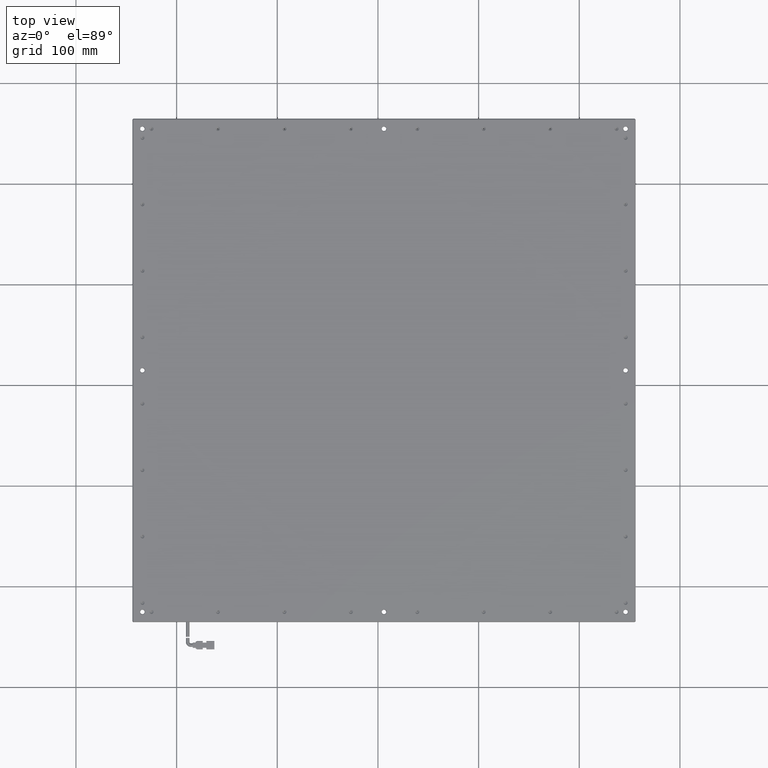
[diagram: clean part render]
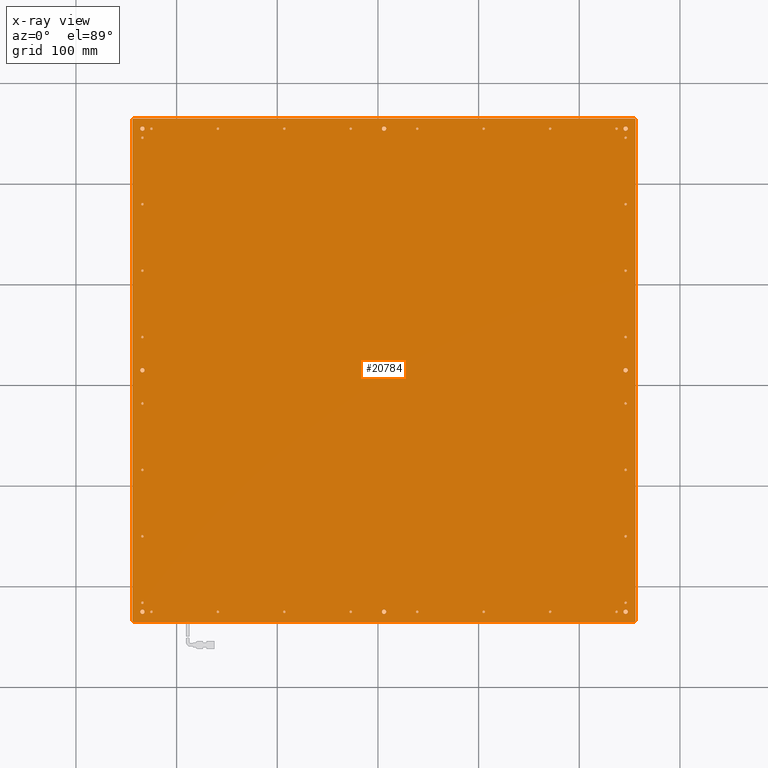
[diagram: x-ray — body ghosted, one internal face saturated and labeled with its STEP entity id]
A machine part, top view, then the same camera in x-ray: the body is ghosted and one INTERNAL B-rep face — a face not visible from any outside direction — is saturated and labeled: STEP entity #20784.
In plain terms, the highlighted planar face has unit normal (0, 0, -1).
Its self-contained STEP definition (entity closure, byte-faithful):
#82 = CARTESIAN_POINT ( 'NONE',  ( -236.2211023082943500, -225.3025821596243400, 6.999999999999999100 ) ) ;
#217 = CARTESIAN_POINT ( 'NONE',  ( -243.9711023082942300, 264.6974178403756400, 6.999999999999999100 ) ) ;
#263 = EDGE_LOOP ( 'NONE', ( #24414, #12138 ) ) ;
#285 = EDGE_CURVE ( 'NONE', #8386, #18416, #8996, .T. ) ;
#308 = CIRCLE ( 'NONE', #15900, 1.199999999999978900 ) ;
#340 = VECTOR ( 'NONE', #4311, 1000.000000000000000 ) ;
#399 = VERTEX_POINT ( 'NONE', #19979 ) ;
#443 = FACE_BOUND ( 'NONE', #3379, .T. ) ;
#487 = AXIS2_PLACEMENT_3D ( 'NONE', #21902, #10169, #23857 ) ;
#491 = VERTEX_POINT ( 'NONE', #8358 ) ;
#511 = ORIENTED_EDGE ( 'NONE', *, *, #3781, .T. ) ;
#534 = CARTESIAN_POINT ( 'NONE',  ( -233.9711023082942300, 113.6974178403756500, 6.999999999999999100 ) ) ;
#602 = CARTESIAN_POINT ( 'NONE',  ( 246.0288976917056200, 47.69741784037565000, 6.999999999999999100 ) ) ;
#613 = VERTEX_POINT ( 'NONE', #23545 ) ;
#627 = DIRECTION ( 'NONE',  ( -0.0000000000000000000, -0.0000000000000000000, 1.000000000000000000 ) ) ;
#630 = CIRCLE ( 'NONE', #5185, 2.249999999999974200 ) ;
#657 = ORIENTED_EDGE ( 'NONE', *, *, #23248, .T. ) ;
#692 = VERTEX_POINT ( 'NONE', #23845 ) ;
#711 = CIRCLE ( 'NONE', #13044, 1.199999999999999700 ) ;
#785 = DIRECTION ( 'NONE',  ( -0.0000000000000000000, -0.0000000000000000000, 1.000000000000000000 ) ) ;
#826 = CARTESIAN_POINT ( 'NONE',  ( -233.9711023082943800, -225.3025821596243400, 6.999999999999999100 ) ) ;
#827 = CARTESIAN_POINT ( 'NONE',  ( 246.0288976917056200, 245.6974178403756600, 6.999999999999999100 ) ) ;
#842 = EDGE_LOOP ( 'NONE', ( #21707, #18610 ) ) ;
#843 = LINE ( 'NONE', #19432, #2734 ) ;
#848 = DIRECTION ( 'NONE',  ( 1.000000000000000000, 0.0000000000000000000, 0.0000000000000000000 ) ) ;
#890 = CARTESIAN_POINT ( 'NONE',  ( 171.0288976917057900, 254.6974178403756400, 6.999999999999999100 ) ) ;
#894 = VERTEX_POINT ( 'NONE', #18318 ) ;
#935 = CARTESIAN_POINT ( 'NONE',  ( -232.7711023082942500, 245.6974178403756600, 6.999999999999999100 ) ) ;
#949 = DIRECTION ( 'NONE',  ( 1.000000000000000000, 0.0000000000000000000, 0.0000000000000000000 ) ) ;
#952 = DIRECTION ( 'NONE',  ( 1.000000000000000000, 0.0000000000000000000, 0.0000000000000000000 ) ) ;
#993 = VERTEX_POINT ( 'NONE', #25262 ) ;
#1008 = DIRECTION ( 'NONE',  ( -0.0000000000000000000, -0.0000000000000000000, 1.000000000000000000 ) ) ;
#1029 = CARTESIAN_POINT ( 'NONE',  ( 238.2288976917058100, -225.3025821596243400, 6.999999999999999100 ) ) ;
#1042 = EDGE_LOOP ( 'NONE', ( #3017, #18528 ) ) ;
#1047 = CARTESIAN_POINT ( 'NONE',  ( -233.9711023082943800, 14.69741784037564800, 6.999999999999999100 ) ) ;
#1056 = FACE_BOUND ( 'NONE', #24509, .T. ) ;
#1078 = AXIS2_PLACEMENT_3D ( 'NONE', #22632, #10881, #24556 ) ;
#1194 = DIRECTION ( 'NONE',  ( 1.000000000000000000, 0.0000000000000000000, 0.0000000000000000000 ) ) ;
#1252 = CARTESIAN_POINT ( 'NONE',  ( 105.0288976917057800, 254.6974178403756400, 6.999999999999999100 ) ) ;
#1292 = ORIENTED_EDGE ( 'NONE', *, *, #1657, .T. ) ;
#1299 = DIRECTION ( 'NONE',  ( -0.0000000000000000000, -0.0000000000000000000, 1.000000000000000000 ) ) ;
#1303 = VECTOR ( 'NONE', #19946, 1000.000000000000000 ) ;
#1404 = EDGE_LOOP ( 'NONE', ( #5963, #16287, #10773, #17759, #14077, #22893, #5890, #22405 ) ) ;
#1416 = AXIS2_PLACEMENT_3D ( 'NONE', #4999, #18632, #6952 ) ;
#1657 = EDGE_CURVE ( 'NONE', #20561, #13398, #16299, .T. ) ;
#1684 = CIRCLE ( 'NONE', #24315, 1.199999999999978900 ) ;
#1704 = FACE_BOUND ( 'NONE', #17876, .T. ) ;
#1705 = DIRECTION ( 'NONE',  ( -0.0000000000000000000, -0.0000000000000000000, 1.000000000000000000 ) ) ;
#1739 = DIRECTION ( 'NONE',  ( 1.000000000000000000, 0.0000000000000000000, 0.0000000000000000000 ) ) ;
#1741 = AXIS2_PLACEMENT_3D ( 'NONE', #2378, #16009, #4353 ) ;
#1757 = CIRCLE ( 'NONE', #5258, 1.200000000000006600 ) ;
#1777 = EDGE_CURVE ( 'NONE', #5033, #7487, #9608, .T. ) ;
#1799 = CARTESIAN_POINT ( 'NONE',  ( -233.9711023082942300, 113.6974178403756500, 6.999999999999999100 ) ) ;
#1864 = CIRCLE ( 'NONE', #9577, 1.200000000000006600 ) ;
#1980 = EDGE_CURVE ( 'NONE', #20592, #15509, #14482, .T. ) ;
#1989 = ORIENTED_EDGE ( 'NONE', *, *, #23533, .T. ) ;
#2054 = CARTESIAN_POINT ( 'NONE',  ( 256.0288976917057700, 263.6974178403756400, 6.999999999999999100 ) ) ;
#2107 = CIRCLE ( 'NONE', #8156, 1.199999999999978900 ) ;
#2127 = ORIENTED_EDGE ( 'NONE', *, *, #24760, .T. ) ;
#2136 = EDGE_LOOP ( 'NONE', ( #19882, #3644 ) ) ;
#2140 = CARTESIAN_POINT ( 'NONE',  ( -235.1711023082942200, 47.69741784037565000, 6.999999999999999100 ) ) ;
#2204 = VERTEX_POINT ( 'NONE', #12789 ) ;
#2211 = CARTESIAN_POINT ( 'NONE',  ( 171.0288976917057900, 254.6974178403756400, 6.999999999999999100 ) ) ;
#2214 = EDGE_CURVE ( 'NONE', #21208, #5743, #19745, .T. ) ;
#2216 = DIRECTION ( 'NONE',  ( -0.0000000000000000000, -0.0000000000000000000, 1.000000000000000000 ) ) ;
#2284 = EDGE_CURVE ( 'NONE', #7181, #19151, #23697, .T. ) ;
#2290 = VERTEX_POINT ( 'NONE', #22848 ) ;
#2326 = FACE_BOUND ( 'NONE', #9580, .T. ) ;
#2363 = ORIENTED_EDGE ( 'NONE', *, *, #4553, .T. ) ;
#2378 = CARTESIAN_POINT ( 'NONE',  ( -233.9711023082942300, -216.3025821596243600, 6.999999999999999100 ) ) ;
#2403 = EDGE_CURVE ( 'NONE', #2204, #12112, #23395, .T. ) ;
#2421 = ORIENTED_EDGE ( 'NONE', *, *, #3674, .T. ) ;
#2523 = CIRCLE ( 'NONE', #7511, 1.200000000000006600 ) ;
#2533 = DIRECTION ( 'NONE',  ( 1.000000000000000000, 0.0000000000000000000, 0.0000000000000000000 ) ) ;
#2538 = DIRECTION ( 'NONE',  ( -0.0000000000000000000, -0.0000000000000000000, 1.000000000000000000 ) ) ;
#2567 = VERTEX_POINT ( 'NONE', #5777 ) ;
#2615 = DIRECTION ( 'NONE',  ( 1.000000000000000000, 0.0000000000000000000, 0.0000000000000000000 ) ) ;
#2644 = VERTEX_POINT ( 'NONE', #21356 ) ;
#2652 = EDGE_LOOP ( 'NONE', ( #24714, #511 ) ) ;
#2733 = VERTEX_POINT ( 'NONE', #4977 ) ;
#2734 = VECTOR ( 'NONE', #19069, 1000.000000000000100 ) ;
#2735 = EDGE_CURVE ( 'NONE', #23684, #7314, #25149, .T. ) ;
#2841 = CIRCLE ( 'NONE', #23429, 1.199999999999978900 ) ;
#2849 = DIRECTION ( 'NONE',  ( 1.000000000000000000, 0.0000000000000000000, 0.0000000000000000000 ) ) ;
#2850 = DIRECTION ( 'NONE',  ( 1.000000000000000000, 0.0000000000000000000, 0.0000000000000000000 ) ) ;
#2906 = CARTESIAN_POINT ( 'NONE',  ( 172.2288976917057800, -225.3025821596243400, 6.999999999999999100 ) ) ;
#2920 = DIRECTION ( 'NONE',  ( 1.000000000000000000, 0.0000000000000000000, 0.0000000000000000000 ) ) ;
#2984 = EDGE_CURVE ( 'NONE', #17119, #4357, #308, .T. ) ;
#2996 = CARTESIAN_POINT ( 'NONE',  ( 256.0288976917057700, 264.6974178403756400, 6.999999999999999100 ) ) ;
#3010 = CIRCLE ( 'NONE', #1078, 1.199999999999978900 ) ;
#3017 = ORIENTED_EDGE ( 'NONE', *, *, #10455, .T. ) ;
#3029 = DIRECTION ( 'NONE',  ( -0.0000000000000000000, -0.0000000000000000000, 1.000000000000000000 ) ) ;
#3051 = ORIENTED_EDGE ( 'NONE', *, *, #18448, .T. ) ;
#3054 = AXIS2_PLACEMENT_3D ( 'NONE', #12375, #627, #14304 ) ;
#3060 = DIRECTION ( 'NONE',  ( 1.000000000000000000, 0.0000000000000000000, 0.0000000000000000000 ) ) ;
#3079 = CARTESIAN_POINT ( 'NONE',  ( -25.77110230829422100, 254.6974178403756400, 6.999999999999999100 ) ) ;
#3143 = CIRCLE ( 'NONE', #13707, 2.249999999999974200 ) ;
#3155 = EDGE_CURVE ( 'NONE', #4357, #17119, #13154, .T. ) ;
#3157 = VERTEX_POINT ( 'NONE', #10578 ) ;
#3240 = FACE_BOUND ( 'NONE', #6865, .T. ) ;
#3245 = AXIS2_PLACEMENT_3D ( 'NONE', #17960, #6269, #19960 ) ;
#3277 = DIRECTION ( 'NONE',  ( 1.000000000000000000, 0.0000000000000000000, 0.0000000000000000000 ) ) ;
#3334 = ORIENTED_EDGE ( 'NONE', *, *, #24579, .T. ) ;
#3379 = EDGE_LOOP ( 'NONE', ( #3051, #21103 ) ) ;
#3446 = EDGE_CURVE ( 'NONE', #12967, #10220, #14023, .T. ) ;
#3454 = CARTESIAN_POINT ( 'NONE',  ( -91.77110230829423200, 254.6974178403756400, 6.999999999999999100 ) ) ;
#3586 = ORIENTED_EDGE ( 'NONE', *, *, #4715, .T. ) ;
#3611 = EDGE_CURVE ( 'NONE', #12637, #4124, #843, .T. ) ;
#3644 = ORIENTED_EDGE ( 'NONE', *, *, #7972, .T. ) ;
#3674 = EDGE_CURVE ( 'NONE', #15329, #11441, #17394, .T. ) ;
#3770 = CARTESIAN_POINT ( 'NONE',  ( 255.0288976917055700, 264.6974178403756900, 6.999999999999999100 ) ) ;
#3781 = EDGE_CURVE ( 'NONE', #12560, #24796, #4490, .T. ) ;
#3799 = DIRECTION ( 'NONE',  ( 1.000000000000000000, 0.0000000000000000000, 0.0000000000000000000 ) ) ;
#3809 = EDGE_LOOP ( 'NONE', ( #9788, #2127 ) ) ;
#3873 = FACE_BOUND ( 'NONE', #23855, .T. ) ;
#3918 = ORIENTED_EDGE ( 'NONE', *, *, #11062, .T. ) ;
#3982 = ORIENTED_EDGE ( 'NONE', *, *, #23679, .T. ) ;
#4004 = EDGE_CURVE ( 'NONE', #993, #613, #1684, .T. ) ;
#4120 = ORIENTED_EDGE ( 'NONE', *, *, #12788, .T. ) ;
#4124 = VERTEX_POINT ( 'NONE', #12836 ) ;
#4173 = VERTEX_POINT ( 'NONE', #8651 ) ;
#4174 = CIRCLE ( 'NONE', #16356, 1.199999999999978900 ) ;
#4191 = CIRCLE ( 'NONE', #11289, 1.199999999999978900 ) ;
#4205 = DIRECTION ( 'NONE',  ( 1.000000000000000000, 0.0000000000000000000, 0.0000000000000000000 ) ) ;
#4227 = DIRECTION ( 'NONE',  ( -0.0000000000000000000, -0.0000000000000000000, 1.000000000000000000 ) ) ;
#4311 = DIRECTION ( 'NONE',  ( -0.7071067811865279200, -0.7071067811865671100, 0.0000000000000000000 ) ) ;
#4345 = DIRECTION ( 'NONE',  ( -0.0000000000000000000, -0.0000000000000000000, 1.000000000000000000 ) ) ;
#4349 = DIRECTION ( 'NONE',  ( -0.0000000000000000000, -0.0000000000000000000, 1.000000000000000000 ) ) ;
#4353 = DIRECTION ( 'NONE',  ( 1.000000000000000000, 0.0000000000000000000, 0.0000000000000000000 ) ) ;
#4357 = VERTEX_POINT ( 'NONE', #22417 ) ;
#4373 = AXIS2_PLACEMENT_3D ( 'NONE', #18451, #6759, #20439 ) ;
#4390 = CARTESIAN_POINT ( 'NONE',  ( 256.0288976917056500, -234.3025821596243600, 6.999999999999999100 ) ) ;
#4412 = DIRECTION ( 'NONE',  ( -0.0000000000000000000, -0.0000000000000000000, 1.000000000000000000 ) ) ;
#4473 = FACE_BOUND ( 'NONE', #7665, .T. ) ;
#4477 = EDGE_CURVE ( 'NONE', #894, #17508, #8054, .T. ) ;
#4488 = EDGE_LOOP ( 'NONE', ( #19386, #17065 ) ) ;
#4490 = CIRCLE ( 'NONE', #15608, 1.199999999999999700 ) ;
#4553 = EDGE_CURVE ( 'NONE', #10220, #12967, #2523, .T. ) ;
#4560 = VERTEX_POINT ( 'NONE', #21389 ) ;
#4583 = DIRECTION ( 'NONE',  ( -0.0000000000000000000, -0.0000000000000000000, 1.000000000000000000 ) ) ;
#4587 = ORIENTED_EDGE ( 'NONE', *, *, #19471, .T. ) ;
#4639 = DIRECTION ( 'NONE',  ( 1.000000000000000000, 0.0000000000000000000, 0.0000000000000000000 ) ) ;
#4663 = ORIENTED_EDGE ( 'NONE', *, *, #12056, .T. ) ;
#4715 = EDGE_CURVE ( 'NONE', #17508, #894, #7447, .T. ) ;
#4771 = CARTESIAN_POINT ( 'NONE',  ( 246.0288976917056200, -84.30258215962435000, 6.999999999999999100 ) ) ;
#4809 = EDGE_CURVE ( 'NONE', #9033, #10343, #11990, .T. ) ;
#4830 = LINE ( 'NONE', #217, #14570 ) ;
#4879 = CIRCLE ( 'NONE', #6162, 1.199999999999978900 ) ;
#4882 = ORIENTED_EDGE ( 'NONE', *, *, #8932, .T. ) ;
#4884 = ORIENTED_EDGE ( 'NONE', *, *, #19030, .T. ) ;
#4922 = CIRCLE ( 'NONE', #13685, 1.199999999999978900 ) ;
#4958 = CARTESIAN_POINT ( 'NONE',  ( -26.97110230829422100, 254.6974178403756400, 6.999999999999999100 ) ) ;
#4960 = CARTESIAN_POINT ( 'NONE',  ( -243.9711023082942300, 263.6974178403753500, 6.999999999999999100 ) ) ;
#4971 = CARTESIAN_POINT ( 'NONE',  ( 106.2288976917058000, -225.3025821596243400, 6.999999999999999100 ) ) ;
#4976 = CARTESIAN_POINT ( 'NONE',  ( -91.77110230829421800, -225.3025821596243400, 6.999999999999999100 ) ) ;
#4977 = CARTESIAN_POINT ( 'NONE',  ( 172.2288976917057800, 254.6974178403756400, 6.999999999999999100 ) ) ;
#4979 = DIRECTION ( 'NONE',  ( -1.000000000000000000, 0.0000000000000000000, -0.0000000000000000000 ) ) ;
#4992 = DIRECTION ( 'NONE',  ( -0.0000000000000000000, -0.0000000000000000000, 1.000000000000000000 ) ) ;
#4994 = CARTESIAN_POINT ( 'NONE',  ( 256.0288976917057700, 264.6974178403756400, 6.999999999999999100 ) ) ;
#4999 = CARTESIAN_POINT ( 'NONE',  ( 171.0288976917057900, -225.3025821596243400, 6.999999999999999100 ) ) ;
#5001 = CARTESIAN_POINT ( 'NONE',  ( -226.1711023082942200, -225.3025821596243400, 6.999999999999999100 ) ) ;
#5033 = VERTEX_POINT ( 'NONE', #4960 ) ;
#5037 = CARTESIAN_POINT ( 'NONE',  ( 244.8288976917056600, -216.3025821596243600, 6.999999999999999100 ) ) ;
#5085 = CARTESIAN_POINT ( 'NONE',  ( 246.0288976917056200, -84.30258215962435000, 6.999999999999999100 ) ) ;
#5108 = FACE_BOUND ( 'NONE', #2652, .T. ) ;
#5113 = AXIS2_PLACEMENT_3D ( 'NONE', #16000, #4345, #18000 ) ;
#5115 = ORIENTED_EDGE ( 'NONE', *, *, #13405, .T. ) ;
#5126 = CARTESIAN_POINT ( 'NONE',  ( -26.97110230829422100, -225.3025821596243400, 6.999999999999999100 ) ) ;
#5133 = CIRCLE ( 'NONE', #6210, 1.199999999999978900 ) ;
#5185 = AXIS2_PLACEMENT_3D ( 'NONE', #22449, #10694, #24384 ) ;
#5214 = AXIS2_PLACEMENT_3D ( 'NONE', #16979, #5346, #18968 ) ;
#5226 = AXIS2_PLACEMENT_3D ( 'NONE', #826, #14536, #2849 ) ;
#5258 = AXIS2_PLACEMENT_3D ( 'NONE', #24413, #12708, #952 ) ;
#5308 = EDGE_CURVE ( 'NONE', #5360, #12182, #2107, .T. ) ;
#5322 = VERTEX_POINT ( 'NONE', #935 ) ;
#5342 = EDGE_CURVE ( 'NONE', #16157, #6713, #3010, .T. ) ;
#5346 = DIRECTION ( 'NONE',  ( -0.0000000000000000000, -0.0000000000000000000, 1.000000000000000000 ) ) ;
#5360 = VERTEX_POINT ( 'NONE', #5037 ) ;
#5543 = CARTESIAN_POINT ( 'NONE',  ( 6.028897691705697800, 254.6974178403756400, 6.999999999999999100 ) ) ;
#5569 = AXIS2_PLACEMENT_3D ( 'NONE', #6292, #19980, #8246 ) ;
#5599 = ORIENTED_EDGE ( 'NONE', *, *, #5308, .T. ) ;
#5619 = EDGE_CURVE ( 'NONE', #6930, #10878, #22573, .T. ) ;
#5620 = CIRCLE ( 'NONE', #15993, 1.199999999999978900 ) ;
#5658 = ORIENTED_EDGE ( 'NONE', *, *, #25210, .T. ) ;
#5691 = DIRECTION ( 'NONE',  ( 0.7071067811864199000, 0.7071067811866750300, 0.0000000000000000000 ) ) ;
#5711 = AXIS2_PLACEMENT_3D ( 'NONE', #890, #14610, #2920 ) ;
#5714 = AXIS2_PLACEMENT_3D ( 'NONE', #6661, #20338, #8593 ) ;
#5723 = CARTESIAN_POINT ( 'NONE',  ( -243.9711023082942300, 263.6974178403752400, 6.999999999999999100 ) ) ;
#5725 = FACE_OUTER_BOUND ( 'NONE', #1404, .T. ) ;
#5730 = CIRCLE ( 'NONE', #9066, 1.200000000000006600 ) ;
#5743 = VERTEX_POINT ( 'NONE', #24453 ) ;
#5755 = CARTESIAN_POINT ( 'NONE',  ( -224.9711023082942300, -225.3025821596243400, 6.999999999999999100 ) ) ;
#5763 = CARTESIAN_POINT ( 'NONE',  ( 39.02889769170577900, -225.3025821596243400, 6.999999999999999100 ) ) ;
#5777 = CARTESIAN_POINT ( 'NONE',  ( 255.0288976917057900, -235.3025821596243600, 6.999999999999999100 ) ) ;
#5878 = CARTESIAN_POINT ( 'NONE',  ( -158.9711023082942300, 254.6974178403756400, 6.999999999999999100 ) ) ;
#5881 = EDGE_CURVE ( 'NONE', #10343, #9033, #5133, .T. ) ;
#5890 = ORIENTED_EDGE ( 'NONE', *, *, #17988, .T. ) ;
#5893 = CIRCLE ( 'NONE', #18918, 1.199999999999978900 ) ;
#5911 = DIRECTION ( 'NONE',  ( -0.0000000000000000000, -0.0000000000000000000, 1.000000000000000000 ) ) ;
#5942 = EDGE_CURVE ( 'NONE', #13796, #21272, #19496, .T. ) ;
#5963 = ORIENTED_EDGE ( 'NONE', *, *, #25348, .T. ) ;
#6015 = CARTESIAN_POINT ( 'NONE',  ( 248.2788976917057400, -225.3025821596243400, 6.999999999999999100 ) ) ;
#6046 = EDGE_LOOP ( 'NONE', ( #3334, #19250 ) ) ;
#6063 = ORIENTED_EDGE ( 'NONE', *, *, #11624, .T. ) ;
#6123 = CARTESIAN_POINT ( 'NONE',  ( 246.0288976917056200, 179.6974178403756600, 6.999999999999999100 ) ) ;
#6162 = AXIS2_PLACEMENT_3D ( 'NONE', #18031, #6349, #20039 ) ;
#6210 = AXIS2_PLACEMENT_3D ( 'NONE', #19272, #7560, #21225 ) ;
#6269 = DIRECTION ( 'NONE',  ( -0.0000000000000000000, -0.0000000000000000000, 1.000000000000000000 ) ) ;
#6292 = CARTESIAN_POINT ( 'NONE',  ( 105.0288976917057800, -225.3025821596243400, 6.999999999999999100 ) ) ;
#6304 = FACE_BOUND ( 'NONE', #23328, .T. ) ;
#6349 = DIRECTION ( 'NONE',  ( -0.0000000000000000000, -0.0000000000000000000, 1.000000000000000000 ) ) ;
#6351 = CIRCLE ( 'NONE', #11896, 2.249999999999974200 ) ;
#6412 = CARTESIAN_POINT ( 'NONE',  ( -160.1711023082942200, -225.3025821596243400, 6.999999999999999100 ) ) ;
#6417 = VERTEX_POINT ( 'NONE', #9309 ) ;
#6437 = CARTESIAN_POINT ( 'NONE',  ( -233.9711023082942300, -18.30258215962435400, 6.999999999999999100 ) ) ;
#6493 = CARTESIAN_POINT ( 'NONE',  ( 6.028897691705757300, -225.3025821596243400, 6.999999999999999100 ) ) ;
#6542 = EDGE_CURVE ( 'NONE', #20033, #10086, #8671, .T. ) ;
#6544 = LINE ( 'NONE', #15952, #1303 ) ;
#6661 = CARTESIAN_POINT ( 'NONE',  ( 246.0288976917056200, 113.6974178403756500, 6.999999999999999100 ) ) ;
#6679 = CARTESIAN_POINT ( 'NONE',  ( -235.1711023082942200, 245.6974178403756600, 6.999999999999999100 ) ) ;
#6698 = AXIS2_PLACEMENT_3D ( 'NONE', #5085, #4992, #4639 ) ;
#6709 = DIRECTION ( 'NONE',  ( 1.000000000000000000, 0.0000000000000000000, 0.0000000000000000000 ) ) ;
#6713 = VERTEX_POINT ( 'NONE', #20329 ) ;
#6726 = CARTESIAN_POINT ( 'NONE',  ( 244.8288976917056600, -150.3025821596243600, 6.999999999999999100 ) ) ;
#6759 = DIRECTION ( 'NONE',  ( -0.0000000000000000000, -0.0000000000000000000, 1.000000000000000000 ) ) ;
#6788 = AXIS2_PLACEMENT_3D ( 'NONE', #5126, #18738, #7068 ) ;
#6865 = EDGE_LOOP ( 'NONE', ( #3982, #8315 ) ) ;
#6874 = DIRECTION ( 'NONE',  ( -0.0000000000000000000, -0.0000000000000000000, 1.000000000000000000 ) ) ;
#6889 = EDGE_CURVE ( 'NONE', #8230, #10117, #6351, .T. ) ;
#6907 = DIRECTION ( 'NONE',  ( 1.000000000000000000, 0.0000000000000000000, 0.0000000000000000000 ) ) ;
#6922 = FACE_BOUND ( 'NONE', #18152, .T. ) ;
#6930 = VERTEX_POINT ( 'NONE', #24737 ) ;
#6952 = DIRECTION ( 'NONE',  ( 1.000000000000000000, 0.0000000000000000000, 0.0000000000000000000 ) ) ;
#6979 = CIRCLE ( 'NONE', #5113, 1.199999999999978900 ) ;
#7006 = ORIENTED_EDGE ( 'NONE', *, *, #2984, .T. ) ;
#7068 = DIRECTION ( 'NONE',  ( 1.000000000000000000, 0.0000000000000000000, 0.0000000000000000000 ) ) ;
#7086 = CIRCLE ( 'NONE', #5569, 1.200000000000006600 ) ;
#7156 = AXIS2_PLACEMENT_3D ( 'NONE', #8804, #22530, #10771 ) ;
#7181 = VERTEX_POINT ( 'NONE', #9526 ) ;
#7314 = VERTEX_POINT ( 'NONE', #23790 ) ;
#7344 = CARTESIAN_POINT ( 'NONE',  ( 169.8288976917057800, 254.6974178403756400, 6.999999999999999100 ) ) ;
#7382 = EDGE_LOOP ( 'NONE', ( #3918, #12147 ) ) ;
#7447 = CIRCLE ( 'NONE', #24488, 2.249999999999974200 ) ;
#7487 = VERTEX_POINT ( 'NONE', #8701 ) ;
#7494 = DIRECTION ( 'NONE',  ( 1.000000000000000000, 0.0000000000000000000, 0.0000000000000000000 ) ) ;
#7501 = DIRECTION ( 'NONE',  ( -0.0000000000000000000, -0.0000000000000000000, 1.000000000000000000 ) ) ;
#7511 = AXIS2_PLACEMENT_3D ( 'NONE', #5763, #19420, #7691 ) ;
#7523 = EDGE_CURVE ( 'NONE', #10086, #692, #17559, .T. ) ;
#7546 = FACE_BOUND ( 'NONE', #12905, .T. ) ;
#7560 = DIRECTION ( 'NONE',  ( -0.0000000000000000000, -0.0000000000000000000, 1.000000000000000000 ) ) ;
#7600 = CARTESIAN_POINT ( 'NONE',  ( -233.9711023082942300, 47.69741784037565000, 6.999999999999999100 ) ) ;
#7660 = AXIS2_PLACEMENT_3D ( 'NONE', #4958, #18594, #6907 ) ;
#7665 = EDGE_LOOP ( 'NONE', ( #24144, #24348 ) ) ;
#7681 = DIRECTION ( 'NONE',  ( 1.000000000000000000, 0.0000000000000000000, 0.0000000000000000000 ) ) ;
#7691 = DIRECTION ( 'NONE',  ( 1.000000000000000000, 0.0000000000000000000, 0.0000000000000000000 ) ) ;
#7711 = ORIENTED_EDGE ( 'NONE', *, *, #12535, .T. ) ;
#7720 = ORIENTED_EDGE ( 'NONE', *, *, #12308, .T. ) ;
#7760 = ORIENTED_EDGE ( 'NONE', *, *, #25232, .T. ) ;
#7762 = DIRECTION ( 'NONE',  ( -0.0000000000000000000, -0.0000000000000000000, 1.000000000000000000 ) ) ;
#7796 = DIRECTION ( 'NONE',  ( 1.000000000000000000, 0.0000000000000000000, 0.0000000000000000000 ) ) ;
#7797 = VECTOR ( 'NONE', #16627, 1000.000000000000000 ) ;
#7822 = DIRECTION ( 'NONE',  ( 1.000000000000000000, 0.0000000000000000000, 0.0000000000000000000 ) ) ;
#7862 = CARTESIAN_POINT ( 'NONE',  ( -233.9711023082942300, 47.69741784037565000, 6.999999999999999100 ) ) ;
#7890 = AXIS2_PLACEMENT_3D ( 'NONE', #16003, #4349, #18003 ) ;
#7951 = VERTEX_POINT ( 'NONE', #12365 ) ;
#7972 = EDGE_CURVE ( 'NONE', #7314, #23684, #14421, .T. ) ;
#7984 = CIRCLE ( 'NONE', #14389, 1.199999999999978900 ) ;
#8054 = CIRCLE ( 'NONE', #15797, 2.249999999999974200 ) ;
#8070 = DIRECTION ( 'NONE',  ( 1.000000000000000000, 0.0000000000000000000, 0.0000000000000000000 ) ) ;
#8126 = DIRECTION ( 'NONE',  ( -0.0000000000000000000, -0.0000000000000000000, 1.000000000000000000 ) ) ;
#8131 = CARTESIAN_POINT ( 'NONE',  ( -235.1711023082942200, -150.3025821596243600, 6.999999999999999100 ) ) ;
#8156 = AXIS2_PLACEMENT_3D ( 'NONE', #24309, #12604, #848 ) ;
#8230 = VERTEX_POINT ( 'NONE', #12187 ) ;
#8243 = EDGE_CURVE ( 'NONE', #22208, #9977, #4191, .T. ) ;
#8246 = DIRECTION ( 'NONE',  ( 1.000000000000000000, 0.0000000000000000000, 0.0000000000000000000 ) ) ;
#8274 = VERTEX_POINT ( 'NONE', #8504 ) ;
#8299 = ORIENTED_EDGE ( 'NONE', *, *, #15692, .T. ) ;
#8315 = ORIENTED_EDGE ( 'NONE', *, *, #23324, .T. ) ;
#8355 = AXIS2_PLACEMENT_3D ( 'NONE', #7862, #21545, #9832 ) ;
#8358 = CARTESIAN_POINT ( 'NONE',  ( -235.1711023082942200, -18.30258215962435400, 6.999999999999999100 ) ) ;
#8366 = ORIENTED_EDGE ( 'NONE', *, *, #19530, .T. ) ;
#8386 = VERTEX_POINT ( 'NONE', #1029 ) ;
#8393 = DIRECTION ( 'NONE',  ( 1.000000000000000000, 0.0000000000000000000, 0.0000000000000000000 ) ) ;
#8424 = FACE_BOUND ( 'NONE', #14223, .T. ) ;
#8459 = DIRECTION ( 'NONE',  ( 1.000000000000000000, 0.0000000000000000000, 0.0000000000000000000 ) ) ;
#8468 = CARTESIAN_POINT ( 'NONE',  ( 246.0288976917057700, 14.69741784037564800, 6.999999999999999100 ) ) ;
#8504 = CARTESIAN_POINT ( 'NONE',  ( 244.8288976917056600, -18.30258215962435400, 6.999999999999999100 ) ) ;
#8534 = ORIENTED_EDGE ( 'NONE', *, *, #3155, .T. ) ;
#8593 = DIRECTION ( 'NONE',  ( 1.000000000000000000, 0.0000000000000000000, 0.0000000000000000000 ) ) ;
#8651 = CARTESIAN_POINT ( 'NONE',  ( 103.8288976917057900, 254.6974178403756400, 6.999999999999999100 ) ) ;
#8659 = ORIENTED_EDGE ( 'NONE', *, *, #11719, .T. ) ;
#8671 = LINE ( 'NONE', #3770, #23698 ) ;
#8701 = CARTESIAN_POINT ( 'NONE',  ( -242.9711023082942300, 264.6974178403756400, 6.999999999999999100 ) ) ;
#8716 = ORIENTED_EDGE ( 'NONE', *, *, #22827, .T. ) ;
#8737 = VERTEX_POINT ( 'NONE', #82 ) ;
#8758 = VERTEX_POINT ( 'NONE', #14183 ) ;
#8760 = CARTESIAN_POINT ( 'NONE',  ( -235.1711023082942200, 113.6974178403756500, 6.999999999999999100 ) ) ;
#8804 = CARTESIAN_POINT ( 'NONE',  ( 246.0288976917056200, -18.30258215962435400, 6.999999999999999100 ) ) ;
#8932 = EDGE_CURVE ( 'NONE', #12182, #5360, #4174, .T. ) ;
#8996 = CIRCLE ( 'NONE', #25286, 1.200000000000006600 ) ;
#9031 = FACE_BOUND ( 'NONE', #9138, .T. ) ;
#9033 = VERTEX_POINT ( 'NONE', #18992 ) ;
#9066 = AXIS2_PLACEMENT_3D ( 'NONE', #18563, #6874, #20539 ) ;
#9114 = DIRECTION ( 'NONE',  ( -0.0000000000000000000, -0.0000000000000000000, 1.000000000000000000 ) ) ;
#9122 = AXIS2_PLACEMENT_3D ( 'NONE', #15321, #15298, #1739 ) ;
#9138 = EDGE_LOOP ( 'NONE', ( #13710, #19842 ) ) ;
#9165 = CARTESIAN_POINT ( 'NONE',  ( -233.9711023082942300, 245.6974178403756600, 6.999999999999999100 ) ) ;
#9232 = CARTESIAN_POINT ( 'NONE',  ( -233.9711023082943800, 254.6974178403756400, 6.999999999999999100 ) ) ;
#9249 = EDGE_CURVE ( 'NONE', #19823, #14080, #22781, .T. ) ;
#9295 = DIRECTION ( 'NONE',  ( -0.0000000000000000000, -0.0000000000000000000, 1.000000000000000000 ) ) ;
#9299 = EDGE_CURVE ( 'NONE', #2290, #11372, #11737, .T. ) ;
#9309 = CARTESIAN_POINT ( 'NONE',  ( 247.2288976917056100, -18.30258215962435400, 6.999999999999999100 ) ) ;
#9315 = VECTOR ( 'NONE', #12899, 1000.000000000000000 ) ;
#9322 = EDGE_CURVE ( 'NONE', #2567, #12637, #6544, .T. ) ;
#9379 = VERTEX_POINT ( 'NONE', #20193 ) ;
#9411 = EDGE_CURVE ( 'NONE', #9379, #22538, #12030, .T. ) ;
#9473 = CARTESIAN_POINT ( 'NONE',  ( 246.0288976917057700, 254.6974178403756400, 6.999999999999999100 ) ) ;
#9526 = CARTESIAN_POINT ( 'NONE',  ( 169.8288976917057800, -225.3025821596243400, 6.999999999999999100 ) ) ;
#9577 = AXIS2_PLACEMENT_3D ( 'NONE', #16074, #4412, #18058 ) ;
#9580 = EDGE_LOOP ( 'NONE', ( #12614, #16546 ) ) ;
#9593 = CARTESIAN_POINT ( 'NONE',  ( 246.0288976917057700, -225.3025821596243400, 6.999999999999999100 ) ) ;
#9608 = LINE ( 'NONE', #5723, #24564 ) ;
#9613 = ORIENTED_EDGE ( 'NONE', *, *, #5342, .T. ) ;
#9631 = AXIS2_PLACEMENT_3D ( 'NONE', #10196, #23877, #12160 ) ;
#9644 = EDGE_CURVE ( 'NONE', #692, #2567, #15357, .T. ) ;
#9680 = FACE_BOUND ( 'NONE', #16426, .T. ) ;
#9772 = CARTESIAN_POINT ( 'NONE',  ( -242.9711023082942900, -235.3025821596243600, 6.999999999999999100 ) ) ;
#9788 = ORIENTED_EDGE ( 'NONE', *, *, #15809, .T. ) ;
#9810 = ORIENTED_EDGE ( 'NONE', *, *, #12918, .T. ) ;
#9814 = AXIS2_PLACEMENT_3D ( 'NONE', #5878, #19550, #7822 ) ;
#9815 = AXIS2_PLACEMENT_3D ( 'NONE', #13128, #24948, #12966 ) ;
#9822 = ORIENTED_EDGE ( 'NONE', *, *, #2284, .T. ) ;
#9832 = DIRECTION ( 'NONE',  ( 1.000000000000000000, 0.0000000000000000000, 0.0000000000000000000 ) ) ;
#9894 = AXIS2_PLACEMENT_3D ( 'NONE', #24499, #23003, #22919 ) ;
#9930 = ORIENTED_EDGE ( 'NONE', *, *, #5881, .T. ) ;
#9977 = VERTEX_POINT ( 'NONE', #11354 ) ;
#9982 = AXIS2_PLACEMENT_3D ( 'NONE', #6493, #20188, #8459 ) ;
#9994 = AXIS2_PLACEMENT_3D ( 'NONE', #21005, #9295, #22985 ) ;
#10003 = CARTESIAN_POINT ( 'NONE',  ( 103.8288976917057800, -225.3025821596243400, 6.999999999999999100 ) ) ;
#10005 = EDGE_CURVE ( 'NONE', #19160, #13169, #13160, .T. ) ;
#10059 = ORIENTED_EDGE ( 'NONE', *, *, #6889, .T. ) ;
#10086 = VERTEX_POINT ( 'NONE', #2054 ) ;
#10096 = CARTESIAN_POINT ( 'NONE',  ( -232.7711023082942500, 47.69741784037565000, 6.999999999999999100 ) ) ;
#10117 = VERTEX_POINT ( 'NONE', #6015 ) ;
#10169 = DIRECTION ( 'NONE',  ( -0.0000000000000000000, -0.0000000000000000000, 1.000000000000000000 ) ) ;
#10196 = CARTESIAN_POINT ( 'NONE',  ( -233.9711023082942300, 179.6974178403756600, 6.999999999999999100 ) ) ;
#10220 = VERTEX_POINT ( 'NONE', #10317 ) ;
#10260 = FACE_BOUND ( 'NONE', #2136, .T. ) ;
#10317 = CARTESIAN_POINT ( 'NONE',  ( 37.82889769170577700, -225.3025821596243400, 6.999999999999999100 ) ) ;
#10325 = CIRCLE ( 'NONE', #17213, 1.199999999999992600 ) ;
#10343 = VERTEX_POINT ( 'NONE', #22393 ) ;
#10365 = CIRCLE ( 'NONE', #20738, 1.199999999999978900 ) ;
#10412 = DIRECTION ( 'NONE',  ( 1.000000000000000000, 0.0000000000000000000, 0.0000000000000000000 ) ) ;
#10446 = AXIS2_PLACEMENT_3D ( 'NONE', #1047, #14744, #3060 ) ;
#10455 = EDGE_CURVE ( 'NONE', #14080, #19823, #23843, .T. ) ;
#10510 = VERTEX_POINT ( 'NONE', #11236 ) ;
#10526 = DIRECTION ( 'NONE',  ( -0.0000000000000000000, -0.0000000000000000000, 1.000000000000000000 ) ) ;
#10534 = EDGE_LOOP ( 'NONE', ( #18713, #22720 ) ) ;
#10562 = DIRECTION ( 'NONE',  ( -0.0000000000000000000, -0.0000000000000000000, 1.000000000000000000 ) ) ;
#10578 = CARTESIAN_POINT ( 'NONE',  ( 3.778897691705704000, 254.6974178403756400, 6.999999999999999100 ) ) ;
#10587 = DIRECTION ( 'NONE',  ( -0.0000000000000000000, -0.0000000000000000000, 1.000000000000000000 ) ) ;
#10694 = DIRECTION ( 'NONE',  ( -0.0000000000000000000, -0.0000000000000000000, 1.000000000000000000 ) ) ;
#10771 = DIRECTION ( 'NONE',  ( 1.000000000000000000, 0.0000000000000000000, 0.0000000000000000000 ) ) ;
#10773 = ORIENTED_EDGE ( 'NONE', *, *, #7523, .T. ) ;
#10860 = FACE_BOUND ( 'NONE', #1042, .T. ) ;
#10878 = VERTEX_POINT ( 'NONE', #11086 ) ;
#10881 = DIRECTION ( 'NONE',  ( -0.0000000000000000000, -0.0000000000000000000, 1.000000000000000000 ) ) ;
#10978 = EDGE_CURVE ( 'NONE', #11553, #12834, #17021, .T. ) ;
#11062 = EDGE_CURVE ( 'NONE', #2733, #21843, #16563, .T. ) ;
#11064 = CIRCLE ( 'NONE', #5714, 1.199999999999978900 ) ;
#11086 = CARTESIAN_POINT ( 'NONE',  ( -160.1711023082942200, 254.6974178403756400, 6.999999999999999100 ) ) ;
#11091 = ORIENTED_EDGE ( 'NONE', *, *, #4809, .T. ) ;
#11108 = DIRECTION ( 'NONE',  ( 1.000000000000000000, 0.0000000000000000000, 0.0000000000000000000 ) ) ;
#11184 = DIRECTION ( 'NONE',  ( 1.000000000000000000, 0.0000000000000000000, 0.0000000000000000000 ) ) ;
#11236 = CARTESIAN_POINT ( 'NONE',  ( -231.7211023082944100, 14.69741784037564800, 6.999999999999999100 ) ) ;
#11289 = AXIS2_PLACEMENT_3D ( 'NONE', #602, #14284, #2615 ) ;
#11346 = CARTESIAN_POINT ( 'NONE',  ( 40.22889769170578900, -225.3025821596243400, 6.999999999999999100 ) ) ;
#11354 = CARTESIAN_POINT ( 'NONE',  ( 247.2288976917056100, 47.69741784037565000, 6.999999999999999100 ) ) ;
#11372 = VERTEX_POINT ( 'NONE', #24734 ) ;
#11412 = DIRECTION ( 'NONE',  ( 1.000000000000000000, 0.0000000000000000000, 0.0000000000000000000 ) ) ;
#11441 = VERTEX_POINT ( 'NONE', #13267 ) ;
#11474 = CIRCLE ( 'NONE', #13939, 1.199999999999978900 ) ;
#11476 = DIRECTION ( 'NONE',  ( -0.0000000000000000000, -0.0000000000000000000, 1.000000000000000000 ) ) ;
#11494 = FACE_BOUND ( 'NONE', #22185, .T. ) ;
#11532 = CARTESIAN_POINT ( 'NONE',  ( -26.97110230829422100, 254.6974178403756400, 6.999999999999999100 ) ) ;
#11548 = DIRECTION ( 'NONE',  ( 1.000000000000000000, 0.0000000000000000000, 0.0000000000000000000 ) ) ;
#11553 = VERTEX_POINT ( 'NONE', #15903 ) ;
#11616 = CARTESIAN_POINT ( 'NONE',  ( 247.2288976917056100, 179.6974178403756600, 6.999999999999999100 ) ) ;
#11624 = EDGE_CURVE ( 'NONE', #10878, #6930, #1864, .T. ) ;
#11690 = EDGE_CURVE ( 'NONE', #12112, #2204, #12885, .T. ) ;
#11719 = EDGE_CURVE ( 'NONE', #19727, #8737, #630, .T. ) ;
#11726 = AXIS2_PLACEMENT_3D ( 'NONE', #9473, #23171, #11412 ) ;
#11737 = CIRCLE ( 'NONE', #487, 1.200000000000006600 ) ;
#11896 = AXIS2_PLACEMENT_3D ( 'NONE', #20825, #9114, #22815 ) ;
#11900 = AXIS2_PLACEMENT_3D ( 'NONE', #24662, #12931, #1194 ) ;
#11918 = CARTESIAN_POINT ( 'NONE',  ( -231.7211023082944100, 254.6974178403756400, 6.999999999999999100 ) ) ;
#11936 = ORIENTED_EDGE ( 'NONE', *, *, #285, .T. ) ;
#11968 = VERTEX_POINT ( 'NONE', #15551 ) ;
#11985 = ORIENTED_EDGE ( 'NONE', *, *, #3446, .T. ) ;
#11990 = CIRCLE ( 'NONE', #1741, 1.199999999999978900 ) ;
#12030 = CIRCLE ( 'NONE', #18860, 1.199999999999978900 ) ;
#12056 = EDGE_CURVE ( 'NONE', #22538, #9379, #22963, .T. ) ;
#12072 = CIRCLE ( 'NONE', #3245, 1.200000000000006600 ) ;
#12100 = FACE_BOUND ( 'NONE', #16675, .T. ) ;
#12112 = VERTEX_POINT ( 'NONE', #17888 ) ;
#12138 = ORIENTED_EDGE ( 'NONE', *, *, #21739, .T. ) ;
#12147 = ORIENTED_EDGE ( 'NONE', *, *, #12804, .T. ) ;
#12151 = CIRCLE ( 'NONE', #5214, 1.199999999999978900 ) ;
#12160 = DIRECTION ( 'NONE',  ( 1.000000000000000000, 0.0000000000000000000, 0.0000000000000000000 ) ) ;
#12182 = VERTEX_POINT ( 'NONE', #16223 ) ;
#12187 = CARTESIAN_POINT ( 'NONE',  ( 243.7788976917057900, -225.3025821596243400, 6.999999999999999100 ) ) ;
#12284 = EDGE_CURVE ( 'NONE', #613, #993, #10365, .T. ) ;
#12308 = EDGE_CURVE ( 'NONE', #6417, #8274, #23544, .T. ) ;
#12365 = CARTESIAN_POINT ( 'NONE',  ( 248.2788976917057400, 14.69741784037564800, 6.999999999999999100 ) ) ;
#12375 = CARTESIAN_POINT ( 'NONE',  ( 246.0288976917057700, 14.69741784037564800, 6.999999999999999100 ) ) ;
#12417 = AXIS2_PLACEMENT_3D ( 'NONE', #22416, #22159, #22075 ) ;
#12502 = CIRCLE ( 'NONE', #17133, 2.249999999999995100 ) ;
#12527 = CARTESIAN_POINT ( 'NONE',  ( -92.97110230829422100, 254.6974178403756400, 6.999999999999999100 ) ) ;
#12535 = EDGE_CURVE ( 'NONE', #10117, #8230, #23520, .T. ) ;
#12560 = VERTEX_POINT ( 'NONE', #21406 ) ;
#12604 = DIRECTION ( 'NONE',  ( -0.0000000000000000000, -0.0000000000000000000, 1.000000000000000000 ) ) ;
#12614 = ORIENTED_EDGE ( 'NONE', *, *, #5942, .T. ) ;
#12622 = CARTESIAN_POINT ( 'NONE',  ( 8.278897691705752800, -225.3025821596243400, 6.999999999999999100 ) ) ;
#12637 = VERTEX_POINT ( 'NONE', #9772 ) ;
#12661 = EDGE_CURVE ( 'NONE', #21141, #8758, #4879, .T. ) ;
#12677 = DIRECTION ( 'NONE',  ( 1.000000000000000000, 0.0000000000000000000, 0.0000000000000000000 ) ) ;
#12699 = CARTESIAN_POINT ( 'NONE',  ( -232.7711023082942500, -150.3025821596243600, 6.999999999999999100 ) ) ;
#12705 = DIRECTION ( 'NONE',  ( -0.0000000000000000000, -0.0000000000000000000, 1.000000000000000000 ) ) ;
#12708 = DIRECTION ( 'NONE',  ( -0.0000000000000000000, -0.0000000000000000000, 1.000000000000000000 ) ) ;
#12713 = FACE_BOUND ( 'NONE', #6046, .T. ) ;
#12753 = CARTESIAN_POINT ( 'NONE',  ( 105.0288976917057800, 254.6974178403756400, 6.999999999999999100 ) ) ;
#12788 = EDGE_CURVE ( 'NONE', #4560, #11968, #18270, .T. ) ;
#12789 = CARTESIAN_POINT ( 'NONE',  ( 247.2288976917056100, -84.30258215962435000, 6.999999999999999100 ) ) ;
#12804 = EDGE_CURVE ( 'NONE', #21843, #2733, #18901, .T. ) ;
#12829 = DIRECTION ( 'NONE',  ( -0.0000000000000000000, -0.0000000000000000000, 1.000000000000000000 ) ) ;
#12834 = VERTEX_POINT ( 'NONE', #3079 ) ;
#12836 = CARTESIAN_POINT ( 'NONE',  ( -243.9711023082942300, -234.3025821596243600, 6.999999999999999100 ) ) ;
#12879 = CIRCLE ( 'NONE', #11726, 2.249999999999974200 ) ;
#12885 = CIRCLE ( 'NONE', #21387, 1.199999999999978900 ) ;
#12899 = DIRECTION ( 'NONE',  ( 1.000000000000000000, -0.0000000000000000000, 0.0000000000000000000 ) ) ;
#12905 = EDGE_LOOP ( 'NONE', ( #4120, #18735 ) ) ;
#12918 = EDGE_CURVE ( 'NONE', #8758, #21141, #12151, .T. ) ;
#12931 = DIRECTION ( 'NONE',  ( -0.0000000000000000000, -0.0000000000000000000, 1.000000000000000000 ) ) ;
#12966 = DIRECTION ( 'NONE',  ( 1.000000000000000000, 0.0000000000000000000, 0.0000000000000000000 ) ) ;
#12967 = VERTEX_POINT ( 'NONE', #11346 ) ;
#12993 = CIRCLE ( 'NONE', #17964, 1.199999999999992600 ) ;
#13013 = CIRCLE ( 'NONE', #11900, 1.200000000000006600 ) ;
#13024 = CARTESIAN_POINT ( 'NONE',  ( -92.97110230829422100, -225.3025821596243400, 6.999999999999999100 ) ) ;
#13044 = AXIS2_PLACEMENT_3D ( 'NONE', #19867, #8126, #21809 ) ;
#13070 = ORIENTED_EDGE ( 'NONE', *, *, #5619, .T. ) ;
#13128 = CARTESIAN_POINT ( 'NONE',  ( 6.028897691705757300, -225.3025821596243400, 6.999999999999999100 ) ) ;
#13154 = CIRCLE ( 'NONE', #18056, 1.199999999999978900 ) ;
#13157 = CARTESIAN_POINT ( 'NONE',  ( 39.02889769170577900, -225.3025821596243400, 6.999999999999999100 ) ) ;
#13160 = CIRCLE ( 'NONE', #15572, 1.200000000000006600 ) ;
#13169 = VERTEX_POINT ( 'NONE', #10003 ) ;
#13267 = CARTESIAN_POINT ( 'NONE',  ( 238.2288976917058100, 254.6974178403756400, 6.999999999999999100 ) ) ;
#13280 = CARTESIAN_POINT ( 'NONE',  ( -236.2211023082943500, 14.69741784037564800, 6.999999999999999100 ) ) ;
#13290 = ORIENTED_EDGE ( 'NONE', *, *, #4477, .T. ) ;
#13313 = CARTESIAN_POINT ( 'NONE',  ( -223.7711023082942200, -225.3025821596243400, 6.999999999999999100 ) ) ;
#13362 = AXIS2_PLACEMENT_3D ( 'NONE', #16233, #4583, #18235 ) ;
#13389 = CARTESIAN_POINT ( 'NONE',  ( 105.0288976917057800, -225.3025821596243400, 6.999999999999999100 ) ) ;
#13398 = VERTEX_POINT ( 'NONE', #12699 ) ;
#13405 = EDGE_CURVE ( 'NONE', #12834, #11553, #18815, .T. ) ;
#13454 = EDGE_CURVE ( 'NONE', #11372, #2290, #12072, .T. ) ;
#13461 = DIRECTION ( 'NONE',  ( 1.000000000000000000, 0.0000000000000000000, 0.0000000000000000000 ) ) ;
#13590 = CIRCLE ( 'NONE', #20319, 2.249999999999974200 ) ;
#13598 = FACE_BOUND ( 'NONE', #18804, .T. ) ;
#13650 = VERTEX_POINT ( 'NONE', #5001 ) ;
#13685 = AXIS2_PLACEMENT_3D ( 'NONE', #19200, #7501, #21146 ) ;
#13707 = AXIS2_PLACEMENT_3D ( 'NONE', #22304, #10562, #24245 ) ;
#13710 = ORIENTED_EDGE ( 'NONE', *, *, #16433, .T. ) ;
#13796 = VERTEX_POINT ( 'NONE', #21575 ) ;
#13812 = DIRECTION ( 'NONE',  ( 0.0000000000000000000, 1.000000000000000000, 0.0000000000000000000 ) ) ;
#13877 = CARTESIAN_POINT ( 'NONE',  ( -233.9711023082943800, 254.6974178403756400, 6.999999999999999100 ) ) ;
#13926 = EDGE_LOOP ( 'NONE', ( #24167, #8366 ) ) ;
#13939 = AXIS2_PLACEMENT_3D ( 'NONE', #24408, #12705, #949 ) ;
#14023 = CIRCLE ( 'NONE', #21046, 1.200000000000006600 ) ;
#14043 = ORIENTED_EDGE ( 'NONE', *, *, #14391, .T. ) ;
#14077 = ORIENTED_EDGE ( 'NONE', *, *, #9322, .T. ) ;
#14080 = VERTEX_POINT ( 'NONE', #4976 ) ;
#14183 = CARTESIAN_POINT ( 'NONE',  ( -232.7711023082942500, -84.30258215962435000, 6.999999999999999100 ) ) ;
#14197 = FACE_BOUND ( 'NONE', #13926, .T. ) ;
#14214 = DIRECTION ( 'NONE',  ( -0.0000000000000000000, -0.0000000000000000000, 1.000000000000000000 ) ) ;
#14218 = CARTESIAN_POINT ( 'NONE',  ( -233.9711023082942300, -150.3025821596243600, 6.999999999999999100 ) ) ;
#14223 = EDGE_LOOP ( 'NONE', ( #20548, #4884 ) ) ;
#14284 = DIRECTION ( 'NONE',  ( -0.0000000000000000000, -0.0000000000000000000, 1.000000000000000000 ) ) ;
#14304 = DIRECTION ( 'NONE',  ( 1.000000000000000000, 0.0000000000000000000, 0.0000000000000000000 ) ) ;
#14383 = VERTEX_POINT ( 'NONE', #25335 ) ;
#14389 = AXIS2_PLACEMENT_3D ( 'NONE', #534, #14214, #2533 ) ;
#14391 = EDGE_CURVE ( 'NONE', #8274, #6417, #5620, .T. ) ;
#14421 = CIRCLE ( 'NONE', #24543, 1.199999999999992600 ) ;
#14482 = CIRCLE ( 'NONE', #22590, 1.199999999999978900 ) ;
#14485 = DIRECTION ( 'NONE',  ( 1.000000000000000000, 0.0000000000000000000, 0.0000000000000000000 ) ) ;
#14536 = DIRECTION ( 'NONE',  ( -0.0000000000000000000, -0.0000000000000000000, 1.000000000000000000 ) ) ;
#14538 = DIRECTION ( 'NONE',  ( -0.0000000000000000000, -0.0000000000000000000, 1.000000000000000000 ) ) ;
#14570 = VECTOR ( 'NONE', #13812, 1000.000000000000000 ) ;
#14584 = CIRCLE ( 'NONE', #9994, 1.200000000000006600 ) ;
#14610 = DIRECTION ( 'NONE',  ( -0.0000000000000000000, -0.0000000000000000000, 1.000000000000000000 ) ) ;
#14699 = DIRECTION ( 'NONE',  ( 1.000000000000000000, 0.0000000000000000000, 0.0000000000000000000 ) ) ;
#14702 = CARTESIAN_POINT ( 'NONE',  ( 246.0288976917056200, -216.3025821596243600, 6.999999999999999100 ) ) ;
#14744 = DIRECTION ( 'NONE',  ( -0.0000000000000000000, -0.0000000000000000000, 1.000000000000000000 ) ) ;
#14802 = AXIS2_PLACEMENT_3D ( 'NONE', #17256, #16109, #15943 ) ;
#14815 = ORIENTED_EDGE ( 'NONE', *, *, #12661, .T. ) ;
#14834 = FACE_BOUND ( 'NONE', #21650, .T. ) ;
#14874 = ORIENTED_EDGE ( 'NONE', *, *, #23507, .T. ) ;
#14958 = DIRECTION ( 'NONE',  ( -0.0000000000000000000, -0.0000000000000000000, 1.000000000000000000 ) ) ;
#14996 = DIRECTION ( 'NONE',  ( 1.000000000000000000, 0.0000000000000000000, 0.0000000000000000000 ) ) ;
#15221 = EDGE_CURVE ( 'NONE', #19151, #7181, #22637, .T. ) ;
#15298 = DIRECTION ( 'NONE',  ( -0.0000000000000000000, -0.0000000000000000000, 1.000000000000000000 ) ) ;
#15321 = CARTESIAN_POINT ( 'NONE',  ( -233.9711023082942300, -150.3025821596243600, 6.999999999999999100 ) ) ;
#15329 = VERTEX_POINT ( 'NONE', #20954 ) ;
#15357 = LINE ( 'NONE', #4390, #340 ) ;
#15360 = AXIS2_PLACEMENT_3D ( 'NONE', #1799, #15476, #3799 ) ;
#15369 = DIRECTION ( 'NONE',  ( 1.000000000000000000, 0.0000000000000000000, 0.0000000000000000000 ) ) ;
#15391 = VERTEX_POINT ( 'NONE', #13313 ) ;
#15410 = CIRCLE ( 'NONE', #9982, 2.249999999999995100 ) ;
#15430 = AXIS2_PLACEMENT_3D ( 'NONE', #2996, #16610, #4979 ) ;
#15461 = FACE_BOUND ( 'NONE', #842, .T. ) ;
#15476 = DIRECTION ( 'NONE',  ( -0.0000000000000000000, -0.0000000000000000000, 1.000000000000000000 ) ) ;
#15509 = VERTEX_POINT ( 'NONE', #2140 ) ;
#15545 = CARTESIAN_POINT ( 'NONE',  ( -232.7711023082942500, -18.30258215962435400, 6.999999999999999100 ) ) ;
#15551 = CARTESIAN_POINT ( 'NONE',  ( -235.1711023082942200, 179.6974178403756600, 6.999999999999999100 ) ) ;
#15572 = AXIS2_PLACEMENT_3D ( 'NONE', #13389, #1705, #15369 ) ;
#15608 = AXIS2_PLACEMENT_3D ( 'NONE', #19203, #19096, #17816 ) ;
#15656 = DIRECTION ( 'NONE',  ( 1.000000000000000000, 0.0000000000000000000, 0.0000000000000000000 ) ) ;
#15667 = EDGE_LOOP ( 'NONE', ( #21783, #14874 ) ) ;
#15692 = EDGE_CURVE ( 'NONE', #18416, #8386, #1757, .T. ) ;
#15733 = EDGE_CURVE ( 'NONE', #23043, #10510, #17359, .T. ) ;
#15742 = DIRECTION ( 'NONE',  ( -0.0000000000000000000, -0.0000000000000000000, 1.000000000000000000 ) ) ;
#15797 = AXIS2_PLACEMENT_3D ( 'NONE', #9232, #22930, #11184 ) ;
#15809 = EDGE_CURVE ( 'NONE', #399, #22725, #14584, .T. ) ;
#15841 = DIRECTION ( 'NONE',  ( -0.0000000000000000000, -0.0000000000000000000, 1.000000000000000000 ) ) ;
#15846 = DIRECTION ( 'NONE',  ( 1.000000000000000000, 0.0000000000000000000, 0.0000000000000000000 ) ) ;
#15868 = CARTESIAN_POINT ( 'NONE',  ( -92.97110230829422100, -225.3025821596243400, 6.999999999999999100 ) ) ;
#15900 = AXIS2_PLACEMENT_3D ( 'NONE', #17808, #15742, #15656 ) ;
#15903 = CARTESIAN_POINT ( 'NONE',  ( -28.17110230829422000, 254.6974178403756400, 6.999999999999999100 ) ) ;
#15943 = DIRECTION ( 'NONE',  ( 1.000000000000000000, 0.0000000000000000000, 0.0000000000000000000 ) ) ;
#15952 = CARTESIAN_POINT ( 'NONE',  ( 256.0288976917057700, -235.3025821596243600, 6.999999999999999100 ) ) ;
#15993 = AXIS2_PLACEMENT_3D ( 'NONE', #17579, #5911, #19582 ) ;
#16000 = CARTESIAN_POINT ( 'NONE',  ( -233.9711023082942300, 245.6974178403756600, 6.999999999999999100 ) ) ;
#16003 = CARTESIAN_POINT ( 'NONE',  ( -26.97110230829422100, -225.3025821596243400, 6.999999999999999100 ) ) ;
#16009 = DIRECTION ( 'NONE',  ( -0.0000000000000000000, -0.0000000000000000000, 1.000000000000000000 ) ) ;
#16011 = CIRCLE ( 'NONE', #20069, 1.200000000000006600 ) ;
#16040 = FACE_BOUND ( 'NONE', #263, .T. ) ;
#16074 = CARTESIAN_POINT ( 'NONE',  ( -158.9711023082942300, 254.6974178403756400, 6.999999999999999100 ) ) ;
#16109 = DIRECTION ( 'NONE',  ( -0.0000000000000000000, -0.0000000000000000000, 1.000000000000000000 ) ) ;
#16157 = VERTEX_POINT ( 'NONE', #24875 ) ;
#16175 = DIRECTION ( 'NONE',  ( 1.000000000000000000, 0.0000000000000000000, 0.0000000000000000000 ) ) ;
#16206 = VERTEX_POINT ( 'NONE', #24964 ) ;
#16223 = CARTESIAN_POINT ( 'NONE',  ( 247.2288976917056100, -216.3025821596243600, 6.999999999999999100 ) ) ;
#16233 = CARTESIAN_POINT ( 'NONE',  ( 6.028897691705697800, 254.6974178403756400, 6.999999999999999100 ) ) ;
#16287 = ORIENTED_EDGE ( 'NONE', *, *, #6542, .T. ) ;
#16299 = CIRCLE ( 'NONE', #9122, 1.199999999999978900 ) ;
#16356 = AXIS2_PLACEMENT_3D ( 'NONE', #14702, #3029, #16663 ) ;
#16426 = EDGE_LOOP ( 'NONE', ( #4882, #5599 ) ) ;
#16433 = EDGE_CURVE ( 'NONE', #7951, #19275, #13590, .T. ) ;
#16546 = ORIENTED_EDGE ( 'NONE', *, *, #17035, .T. ) ;
#16563 = CIRCLE ( 'NONE', #18047, 1.200000000000006600 ) ;
#16610 = DIRECTION ( 'NONE',  ( 0.0000000000000000000, 0.0000000000000000000, -1.000000000000000000 ) ) ;
#16615 = CIRCLE ( 'NONE', #22738, 1.200000000000006600 ) ;
#16627 = DIRECTION ( 'NONE',  ( -0.0000000000000000000, -1.000000000000000000, -0.0000000000000000000 ) ) ;
#16659 = FACE_BOUND ( 'NONE', #20612, .T. ) ;
#16663 = DIRECTION ( 'NONE',  ( 1.000000000000000000, 0.0000000000000000000, 0.0000000000000000000 ) ) ;
#16675 = EDGE_LOOP ( 'NONE', ( #9810, #14815 ) ) ;
#16891 = EDGE_CURVE ( 'NONE', #15509, #20592, #18745, .T. ) ;
#16938 = CARTESIAN_POINT ( 'NONE',  ( 40.22889769170578200, 254.6974178403756400, 6.999999999999999100 ) ) ;
#16979 = CARTESIAN_POINT ( 'NONE',  ( -233.9711023082942300, -84.30258215962435000, 6.999999999999999100 ) ) ;
#17003 = EDGE_CURVE ( 'NONE', #14383, #19228, #20834, .T. ) ;
#17021 = CIRCLE ( 'NONE', #17220, 1.199999999999999700 ) ;
#17035 = EDGE_CURVE ( 'NONE', #21272, #13796, #7984, .T. ) ;
#17065 = ORIENTED_EDGE ( 'NONE', *, *, #12284, .T. ) ;
#17081 = ORIENTED_EDGE ( 'NONE', *, *, #17707, .T. ) ;
#17119 = VERTEX_POINT ( 'NONE', #6726 ) ;
#17133 = AXIS2_PLACEMENT_3D ( 'NONE', #5543, #19194, #7494 ) ;
#17139 = CARTESIAN_POINT ( 'NONE',  ( 243.7788976917057900, 254.6974178403756400, 6.999999999999999100 ) ) ;
#17193 = DIRECTION ( 'NONE',  ( 1.000000000000000000, 0.0000000000000000000, 0.0000000000000000000 ) ) ;
#17213 = AXIS2_PLACEMENT_3D ( 'NONE', #12753, #1008, #14699 ) ;
#17220 = AXIS2_PLACEMENT_3D ( 'NONE', #11532, #25191, #13461 ) ;
#17256 = CARTESIAN_POINT ( 'NONE',  ( 237.0288976917057900, 254.6974178403756400, 6.999999999999999100 ) ) ;
#17297 = FACE_BOUND ( 'NONE', #15667, .T. ) ;
#17359 = CIRCLE ( 'NONE', #10446, 2.249999999999974200 ) ;
#17372 = DIRECTION ( 'NONE',  ( -0.0000000000000000000, -0.0000000000000000000, 1.000000000000000000 ) ) ;
#17392 = CARTESIAN_POINT ( 'NONE',  ( 237.0288976917057900, -225.3025821596243400, 6.999999999999999100 ) ) ;
#17394 = CIRCLE ( 'NONE', #14802, 1.200000000000006600 ) ;
#17508 = VERTEX_POINT ( 'NONE', #11918 ) ;
#17559 = LINE ( 'NONE', #4994, #7797 ) ;
#17579 = CARTESIAN_POINT ( 'NONE',  ( 246.0288976917056200, -18.30258215962435400, 6.999999999999999100 ) ) ;
#17707 = EDGE_CURVE ( 'NONE', #4173, #18420, #10325, .T. ) ;
#17759 = ORIENTED_EDGE ( 'NONE', *, *, #9644, .T. ) ;
#17808 = CARTESIAN_POINT ( 'NONE',  ( 246.0288976917056200, -150.3025821596243600, 6.999999999999999100 ) ) ;
#17814 = ORIENTED_EDGE ( 'NONE', *, *, #10978, .T. ) ;
#17816 = DIRECTION ( 'NONE',  ( 1.000000000000000000, 0.0000000000000000000, 0.0000000000000000000 ) ) ;
#17864 = DIRECTION ( 'NONE',  ( 1.000000000000000000, 0.0000000000000000000, 0.0000000000000000000 ) ) ;
#17876 = EDGE_LOOP ( 'NONE', ( #25320, #17081 ) ) ;
#17888 = CARTESIAN_POINT ( 'NONE',  ( 244.8288976917056600, -84.30258215962435000, 6.999999999999999100 ) ) ;
#17907 = FACE_BOUND ( 'NONE', #19424, .T. ) ;
#17910 = VERTEX_POINT ( 'NONE', #15545 ) ;
#17960 = CARTESIAN_POINT ( 'NONE',  ( -224.9711023082942300, 254.6974178403756400, 6.999999999999999100 ) ) ;
#17964 = AXIS2_PLACEMENT_3D ( 'NONE', #1252, #14958, #3277 ) ;
#17988 = EDGE_CURVE ( 'NONE', #4124, #5033, #4830, .T. ) ;
#18000 = DIRECTION ( 'NONE',  ( 1.000000000000000000, 0.0000000000000000000, 0.0000000000000000000 ) ) ;
#18003 = DIRECTION ( 'NONE',  ( 1.000000000000000000, 0.0000000000000000000, 0.0000000000000000000 ) ) ;
#18004 = EDGE_LOOP ( 'NONE', ( #4663, #21108 ) ) ;
#18031 = CARTESIAN_POINT ( 'NONE',  ( -233.9711023082942300, -84.30258215962435000, 6.999999999999999100 ) ) ;
#18047 = AXIS2_PLACEMENT_3D ( 'NONE', #2211, #15841, #4205 ) ;
#18056 = AXIS2_PLACEMENT_3D ( 'NONE', #24490, #24256, #22572 ) ;
#18058 = DIRECTION ( 'NONE',  ( 1.000000000000000000, 0.0000000000000000000, 0.0000000000000000000 ) ) ;
#18152 = EDGE_LOOP ( 'NONE', ( #5658, #2421 ) ) ;
#18201 = CIRCLE ( 'NONE', #20603, 1.199999999999978900 ) ;
#18235 = DIRECTION ( 'NONE',  ( 1.000000000000000000, 0.0000000000000000000, 0.0000000000000000000 ) ) ;
#18270 = CIRCLE ( 'NONE', #4373, 1.199999999999978900 ) ;
#18308 = DIRECTION ( 'NONE',  ( 1.000000000000000000, 0.0000000000000000000, 0.0000000000000000000 ) ) ;
#18318 = CARTESIAN_POINT ( 'NONE',  ( -236.2211023082943500, 254.6974178403756400, 6.999999999999999100 ) ) ;
#18351 = ORIENTED_EDGE ( 'NONE', *, *, #15733, .T. ) ;
#18394 = DIRECTION ( 'NONE',  ( -0.0000000000000000000, -0.0000000000000000000, 1.000000000000000000 ) ) ;
#18399 = DIRECTION ( 'NONE',  ( -0.0000000000000000000, -0.0000000000000000000, 1.000000000000000000 ) ) ;
#18416 = VERTEX_POINT ( 'NONE', #23260 ) ;
#18420 = VERTEX_POINT ( 'NONE', #25184 ) ;
#18448 = EDGE_CURVE ( 'NONE', #15391, #13650, #16011, .T. ) ;
#18451 = CARTESIAN_POINT ( 'NONE',  ( -233.9711023082942300, 179.6974178403756600, 6.999999999999999100 ) ) ;
#18497 = CARTESIAN_POINT ( 'NONE',  ( 246.0288976917056200, 245.6974178403756600, 6.999999999999999100 ) ) ;
#18528 = ORIENTED_EDGE ( 'NONE', *, *, #9249, .T. ) ;
#18533 = PLANE ( 'NONE',  #15430 ) ;
#18559 = EDGE_CURVE ( 'NONE', #13650, #15391, #5730, .T. ) ;
#18563 = CARTESIAN_POINT ( 'NONE',  ( -224.9711023082942300, -225.3025821596243400, 6.999999999999999100 ) ) ;
#18594 = DIRECTION ( 'NONE',  ( -0.0000000000000000000, -0.0000000000000000000, 1.000000000000000000 ) ) ;
#18610 = ORIENTED_EDGE ( 'NONE', *, *, #13454, .T. ) ;
#18632 = DIRECTION ( 'NONE',  ( -0.0000000000000000000, -0.0000000000000000000, 1.000000000000000000 ) ) ;
#18657 = EDGE_CURVE ( 'NONE', #18420, #4173, #12993, .T. ) ;
#18681 = EDGE_CURVE ( 'NONE', #20723, #5322, #18201, .T. ) ;
#18713 = ORIENTED_EDGE ( 'NONE', *, *, #1980, .T. ) ;
#18735 = ORIENTED_EDGE ( 'NONE', *, *, #25106, .T. ) ;
#18738 = DIRECTION ( 'NONE',  ( -0.0000000000000000000, -0.0000000000000000000, 1.000000000000000000 ) ) ;
#18745 = CIRCLE ( 'NONE', #8355, 1.199999999999978900 ) ;
#18804 = EDGE_LOOP ( 'NONE', ( #8659, #7760 ) ) ;
#18814 = FACE_BOUND ( 'NONE', #20174, .T. ) ;
#18815 = CIRCLE ( 'NONE', #7660, 1.199999999999999700 ) ;
#18860 = AXIS2_PLACEMENT_3D ( 'NONE', #22325, #10587, #24263 ) ;
#18901 = CIRCLE ( 'NONE', #5711, 1.200000000000006600 ) ;
#18918 = AXIS2_PLACEMENT_3D ( 'NONE', #6437, #20132, #8393 ) ;
#18949 = EDGE_CURVE ( 'NONE', #24796, #12560, #711, .T. ) ;
#18968 = DIRECTION ( 'NONE',  ( 1.000000000000000000, 0.0000000000000000000, 0.0000000000000000000 ) ) ;
#18984 = CIRCLE ( 'NONE', #13362, 2.249999999999995100 ) ;
#18992 = CARTESIAN_POINT ( 'NONE',  ( -235.1711023082942200, -216.3025821596243600, 6.999999999999999100 ) ) ;
#19030 = EDGE_CURVE ( 'NONE', #5743, #21208, #15410, .T. ) ;
#19069 = DIRECTION ( 'NONE',  ( -0.7071067811865474600, 0.7071067811865474600, 0.0000000000000000000 ) ) ;
#19094 = ORIENTED_EDGE ( 'NONE', *, *, #8243, .T. ) ;
#19096 = DIRECTION ( 'NONE',  ( -0.0000000000000000000, -0.0000000000000000000, 1.000000000000000000 ) ) ;
#19151 = VERTEX_POINT ( 'NONE', #2906 ) ;
#19160 = VERTEX_POINT ( 'NONE', #4971 ) ;
#19194 = DIRECTION ( 'NONE',  ( -0.0000000000000000000, -0.0000000000000000000, 1.000000000000000000 ) ) ;
#19200 = CARTESIAN_POINT ( 'NONE',  ( -233.9711023082942300, -18.30258215962435400, 6.999999999999999100 ) ) ;
#19203 = CARTESIAN_POINT ( 'NONE',  ( 39.02889769170577900, 254.6974178403756400, 6.999999999999999100 ) ) ;
#19228 = VERTEX_POINT ( 'NONE', #22576 ) ;
#19250 = ORIENTED_EDGE ( 'NONE', *, *, #18681, .T. ) ;
#19272 = CARTESIAN_POINT ( 'NONE',  ( -233.9711023082942300, -216.3025821596243600, 6.999999999999999100 ) ) ;
#19275 = VERTEX_POINT ( 'NONE', #21016 ) ;
#19347 = ORIENTED_EDGE ( 'NONE', *, *, #10005, .T. ) ;
#19350 = EDGE_LOOP ( 'NONE', ( #5115, #17814 ) ) ;
#19386 = ORIENTED_EDGE ( 'NONE', *, *, #4004, .T. ) ;
#19410 = DIRECTION ( 'NONE',  ( -0.0000000000000000000, -0.0000000000000000000, 1.000000000000000000 ) ) ;
#19411 = EDGE_LOOP ( 'NONE', ( #9930, #11091 ) ) ;
#19420 = DIRECTION ( 'NONE',  ( -0.0000000000000000000, -0.0000000000000000000, 1.000000000000000000 ) ) ;
#19424 = EDGE_LOOP ( 'NONE', ( #8534, #7006 ) ) ;
#19432 = CARTESIAN_POINT ( 'NONE',  ( -242.9711023082942300, -235.3025821596243600, 6.999999999999999100 ) ) ;
#19471 = EDGE_CURVE ( 'NONE', #13398, #20561, #2841, .T. ) ;
#19474 = FACE_BOUND ( 'NONE', #18004, .T. ) ;
#19496 = CIRCLE ( 'NONE', #15360, 1.199999999999978900 ) ;
#19530 = EDGE_CURVE ( 'NONE', #24314, #2644, #3143, .T. ) ;
#19550 = DIRECTION ( 'NONE',  ( -0.0000000000000000000, -0.0000000000000000000, 1.000000000000000000 ) ) ;
#19582 = DIRECTION ( 'NONE',  ( 1.000000000000000000, 0.0000000000000000000, 0.0000000000000000000 ) ) ;
#19727 = VERTEX_POINT ( 'NONE', #24914 ) ;
#19745 = CIRCLE ( 'NONE', #9815, 2.249999999999995100 ) ;
#19746 = LINE ( 'NONE', #24626, #9315 ) ;
#19760 = CARTESIAN_POINT ( 'NONE',  ( -235.1711023082942200, -84.30258215962435000, 6.999999999999999100 ) ) ;
#19787 = AXIS2_PLACEMENT_3D ( 'NONE', #9593, #23282, #11548 ) ;
#19798 = FACE_BOUND ( 'NONE', #22833, .T. ) ;
#19816 = DIRECTION ( 'NONE',  ( -0.0000000000000000000, -0.0000000000000000000, 1.000000000000000000 ) ) ;
#19823 = VERTEX_POINT ( 'NONE', #23316 ) ;
#19842 = ORIENTED_EDGE ( 'NONE', *, *, #22779, .T. ) ;
#19867 = CARTESIAN_POINT ( 'NONE',  ( 39.02889769170577900, 254.6974178403756400, 6.999999999999999100 ) ) ;
#19882 = ORIENTED_EDGE ( 'NONE', *, *, #2735, .T. ) ;
#19923 = AXIS2_PLACEMENT_3D ( 'NONE', #6123, #19816, #8070 ) ;
#19946 = DIRECTION ( 'NONE',  ( -1.000000000000000000, 0.0000000000000000000, -0.0000000000000000000 ) ) ;
#19960 = DIRECTION ( 'NONE',  ( 1.000000000000000000, 0.0000000000000000000, 0.0000000000000000000 ) ) ;
#19979 = CARTESIAN_POINT ( 'NONE',  ( -157.7711023082942200, -225.3025821596243400, 6.999999999999999100 ) ) ;
#19980 = DIRECTION ( 'NONE',  ( -0.0000000000000000000, -0.0000000000000000000, 1.000000000000000000 ) ) ;
#20033 = VERTEX_POINT ( 'NONE', #22020 ) ;
#20039 = DIRECTION ( 'NONE',  ( 1.000000000000000000, 0.0000000000000000000, 0.0000000000000000000 ) ) ;
#20069 = AXIS2_PLACEMENT_3D ( 'NONE', #5755, #19410, #7681 ) ;
#20078 = FACE_BOUND ( 'NONE', #19411, .T. ) ;
#20132 = DIRECTION ( 'NONE',  ( -0.0000000000000000000, -0.0000000000000000000, 1.000000000000000000 ) ) ;
#20174 = EDGE_LOOP ( 'NONE', ( #1989, #18351 ) ) ;
#20188 = DIRECTION ( 'NONE',  ( -0.0000000000000000000, -0.0000000000000000000, 1.000000000000000000 ) ) ;
#20193 = CARTESIAN_POINT ( 'NONE',  ( 244.8288976917056600, 179.6974178403756600, 6.999999999999999100 ) ) ;
#20319 = AXIS2_PLACEMENT_3D ( 'NONE', #8468, #22155, #10412 ) ;
#20329 = CARTESIAN_POINT ( 'NONE',  ( 247.2288976917056100, 113.6974178403756500, 6.999999999999999100 ) ) ;
#20338 = DIRECTION ( 'NONE',  ( -0.0000000000000000000, -0.0000000000000000000, 1.000000000000000000 ) ) ;
#20355 = CIRCLE ( 'NONE', #9631, 1.199999999999978900 ) ;
#20439 = DIRECTION ( 'NONE',  ( 1.000000000000000000, 0.0000000000000000000, 0.0000000000000000000 ) ) ;
#20539 = DIRECTION ( 'NONE',  ( 1.000000000000000000, 0.0000000000000000000, 0.0000000000000000000 ) ) ;
#20548 = ORIENTED_EDGE ( 'NONE', *, *, #2214, .T. ) ;
#20561 = VERTEX_POINT ( 'NONE', #8131 ) ;
#20592 = VERTEX_POINT ( 'NONE', #10096 ) ;
#20603 = AXIS2_PLACEMENT_3D ( 'NONE', #9165, #22866, #11108 ) ;
#20612 = EDGE_LOOP ( 'NONE', ( #13070, #6063 ) ) ;
#20674 = FACE_BOUND ( 'NONE', #3809, .T. ) ;
#20723 = VERTEX_POINT ( 'NONE', #6679 ) ;
#20738 = AXIS2_PLACEMENT_3D ( 'NONE', #827, #14538, #2850 ) ;
#20784 = ADVANCED_FACE ( 'NONE', ( #23156, #19798, #23749, #17907, #12713, #7546, #2326, #22534, #17297, #12100, #6922, #1704, #21910, #16659, #11494, #6304, #1056, #21300, #16040, #10860, #5725, #443, #20674, #15461, #10260, #5108, #25236, #20078, #14834, #9680, #4473, #24632, #19474, #14197, #9031, #3873, #24027, #18814, #13598, #8424, #3240 ), #18533, .T. ) ;
#20825 = CARTESIAN_POINT ( 'NONE',  ( 246.0288976917057700, -225.3025821596243400, 6.999999999999999100 ) ) ;
#20834 = CIRCLE ( 'NONE', #7890, 1.200000000000006600 ) ;
#20881 = EDGE_LOOP ( 'NONE', ( #25322, #19094 ) ) ;
#20954 = CARTESIAN_POINT ( 'NONE',  ( 235.8288976917057800, 254.6974178403756400, 6.999999999999999100 ) ) ;
#21005 = CARTESIAN_POINT ( 'NONE',  ( -158.9711023082942300, -225.3025821596243400, 6.999999999999999100 ) ) ;
#21016 = CARTESIAN_POINT ( 'NONE',  ( 243.7788976917057900, 14.69741784037564800, 6.999999999999999100 ) ) ;
#21046 = AXIS2_PLACEMENT_3D ( 'NONE', #13157, #12829, #12677 ) ;
#21103 = ORIENTED_EDGE ( 'NONE', *, *, #18559, .T. ) ;
#21108 = ORIENTED_EDGE ( 'NONE', *, *, #9411, .T. ) ;
#21141 = VERTEX_POINT ( 'NONE', #19760 ) ;
#21146 = DIRECTION ( 'NONE',  ( 1.000000000000000000, 0.0000000000000000000, 0.0000000000000000000 ) ) ;
#21208 = VERTEX_POINT ( 'NONE', #12622 ) ;
#21225 = DIRECTION ( 'NONE',  ( 1.000000000000000000, 0.0000000000000000000, 0.0000000000000000000 ) ) ;
#21250 = EDGE_CURVE ( 'NONE', #9977, #22208, #11474, .T. ) ;
#21272 = VERTEX_POINT ( 'NONE', #8760 ) ;
#21300 = FACE_BOUND ( 'NONE', #24889, .T. ) ;
#21356 = CARTESIAN_POINT ( 'NONE',  ( 248.2788976917057400, 254.6974178403756400, 6.999999999999999100 ) ) ;
#21387 = AXIS2_PLACEMENT_3D ( 'NONE', #4771, #18394, #6709 ) ;
#21389 = CARTESIAN_POINT ( 'NONE',  ( -232.7711023082942500, 179.6974178403756600, 6.999999999999999100 ) ) ;
#21406 = CARTESIAN_POINT ( 'NONE',  ( 37.82889769170578400, 254.6974178403756400, 6.999999999999999100 ) ) ;
#21513 = CIRCLE ( 'NONE', #3054, 2.249999999999974200 ) ;
#21545 = DIRECTION ( 'NONE',  ( -0.0000000000000000000, -0.0000000000000000000, 1.000000000000000000 ) ) ;
#21575 = CARTESIAN_POINT ( 'NONE',  ( -232.7711023082942500, 113.6974178403756500, 6.999999999999999100 ) ) ;
#21650 = EDGE_LOOP ( 'NONE', ( #4587, #1292 ) ) ;
#21707 = ORIENTED_EDGE ( 'NONE', *, *, #9299, .T. ) ;
#21739 = EDGE_CURVE ( 'NONE', #19228, #14383, #23652, .T. ) ;
#21783 = ORIENTED_EDGE ( 'NONE', *, *, #22130, .T. ) ;
#21785 = ORIENTED_EDGE ( 'NONE', *, *, #15221, .T. ) ;
#21809 = DIRECTION ( 'NONE',  ( 1.000000000000000000, 0.0000000000000000000, 0.0000000000000000000 ) ) ;
#21843 = VERTEX_POINT ( 'NONE', #7344 ) ;
#21902 = CARTESIAN_POINT ( 'NONE',  ( -224.9711023082942300, 254.6974178403756400, 6.999999999999999100 ) ) ;
#21910 = FACE_BOUND ( 'NONE', #19350, .T. ) ;
#22020 = CARTESIAN_POINT ( 'NONE',  ( 255.0288976917056800, 264.6974178403756400, 6.999999999999999100 ) ) ;
#22029 = AXIS2_PLACEMENT_3D ( 'NONE', #13024, #1299, #14996 ) ;
#22075 = DIRECTION ( 'NONE',  ( 1.000000000000000000, 0.0000000000000000000, 0.0000000000000000000 ) ) ;
#22130 = EDGE_CURVE ( 'NONE', #17910, #491, #5893, .T. ) ;
#22155 = DIRECTION ( 'NONE',  ( -0.0000000000000000000, -0.0000000000000000000, 1.000000000000000000 ) ) ;
#22159 = DIRECTION ( 'NONE',  ( -0.0000000000000000000, -0.0000000000000000000, 1.000000000000000000 ) ) ;
#22185 = EDGE_LOOP ( 'NONE', ( #11936, #8299 ) ) ;
#22208 = VERTEX_POINT ( 'NONE', #24202 ) ;
#22271 = CARTESIAN_POINT ( 'NONE',  ( 237.0288976917057900, 254.6974178403756400, 6.999999999999999100 ) ) ;
#22304 = CARTESIAN_POINT ( 'NONE',  ( 246.0288976917057700, 254.6974178403756400, 6.999999999999999100 ) ) ;
#22325 = CARTESIAN_POINT ( 'NONE',  ( 246.0288976917056200, 179.6974178403756600, 6.999999999999999100 ) ) ;
#22327 = EDGE_LOOP ( 'NONE', ( #3586, #13290 ) ) ;
#22393 = CARTESIAN_POINT ( 'NONE',  ( -232.7711023082942500, -216.3025821596243600, 6.999999999999999100 ) ) ;
#22405 = ORIENTED_EDGE ( 'NONE', *, *, #1777, .T. ) ;
#22416 = CARTESIAN_POINT ( 'NONE',  ( 171.0288976917057900, -225.3025821596243400, 6.999999999999999100 ) ) ;
#22417 = CARTESIAN_POINT ( 'NONE',  ( 247.2288976917056100, -150.3025821596243600, 6.999999999999999100 ) ) ;
#22449 = CARTESIAN_POINT ( 'NONE',  ( -233.9711023082943800, -225.3025821596243400, 6.999999999999999100 ) ) ;
#22530 = DIRECTION ( 'NONE',  ( -0.0000000000000000000, -0.0000000000000000000, 1.000000000000000000 ) ) ;
#22534 = FACE_BOUND ( 'NONE', #10534, .T. ) ;
#22538 = VERTEX_POINT ( 'NONE', #11616 ) ;
#22572 = DIRECTION ( 'NONE',  ( 1.000000000000000000, 0.0000000000000000000, 0.0000000000000000000 ) ) ;
#22573 = CIRCLE ( 'NONE', #9814, 1.200000000000006600 ) ;
#22576 = CARTESIAN_POINT ( 'NONE',  ( -28.17110230829422700, -225.3025821596243400, 6.999999999999999100 ) ) ;
#22590 = AXIS2_PLACEMENT_3D ( 'NONE', #7600, #7762, #7796 ) ;
#22632 = CARTESIAN_POINT ( 'NONE',  ( 246.0288976917056200, 113.6974178403756500, 6.999999999999999100 ) ) ;
#22637 = CIRCLE ( 'NONE', #1416, 1.200000000000006600 ) ;
#22720 = ORIENTED_EDGE ( 'NONE', *, *, #16891, .T. ) ;
#22725 = VERTEX_POINT ( 'NONE', #6412 ) ;
#22738 = AXIS2_PLACEMENT_3D ( 'NONE', #22271, #10526, #24211 ) ;
#22779 = EDGE_CURVE ( 'NONE', #19275, #7951, #21513, .T. ) ;
#22781 = CIRCLE ( 'NONE', #24577, 1.200000000000006600 ) ;
#22815 = DIRECTION ( 'NONE',  ( 1.000000000000000000, 0.0000000000000000000, 0.0000000000000000000 ) ) ;
#22827 = EDGE_CURVE ( 'NONE', #6713, #16157, #11064, .T. ) ;
#22833 = EDGE_LOOP ( 'NONE', ( #8716, #9613 ) ) ;
#22848 = CARTESIAN_POINT ( 'NONE',  ( -223.7711023082942200, 254.6974178403756400, 6.999999999999999100 ) ) ;
#22866 = DIRECTION ( 'NONE',  ( -0.0000000000000000000, -0.0000000000000000000, 1.000000000000000000 ) ) ;
#22893 = ORIENTED_EDGE ( 'NONE', *, *, #3611, .T. ) ;
#22914 = AXIS2_PLACEMENT_3D ( 'NONE', #23216, #11476, #25148 ) ;
#22919 = DIRECTION ( 'NONE',  ( 1.000000000000000000, 0.0000000000000000000, 0.0000000000000000000 ) ) ;
#22930 = DIRECTION ( 'NONE',  ( -0.0000000000000000000, -0.0000000000000000000, 1.000000000000000000 ) ) ;
#22963 = CIRCLE ( 'NONE', #19923, 1.199999999999978900 ) ;
#22985 = DIRECTION ( 'NONE',  ( 1.000000000000000000, 0.0000000000000000000, 0.0000000000000000000 ) ) ;
#23003 = DIRECTION ( 'NONE',  ( -0.0000000000000000000, -0.0000000000000000000, 1.000000000000000000 ) ) ;
#23043 = VERTEX_POINT ( 'NONE', #13280 ) ;
#23059 = EDGE_CURVE ( 'NONE', #2644, #24314, #12879, .T. ) ;
#23156 = FACE_BOUND ( 'NONE', #4488, .T. ) ;
#23171 = DIRECTION ( 'NONE',  ( -0.0000000000000000000, -0.0000000000000000000, 1.000000000000000000 ) ) ;
#23216 = CARTESIAN_POINT ( 'NONE',  ( -233.9711023082943800, 14.69741784037564800, 6.999999999999999100 ) ) ;
#23248 = EDGE_CURVE ( 'NONE', #13169, #19160, #7086, .T. ) ;
#23260 = CARTESIAN_POINT ( 'NONE',  ( 235.8288976917057800, -225.3025821596243400, 6.999999999999999100 ) ) ;
#23261 = CIRCLE ( 'NONE', #22914, 2.249999999999974200 ) ;
#23282 = DIRECTION ( 'NONE',  ( -0.0000000000000000000, -0.0000000000000000000, 1.000000000000000000 ) ) ;
#23316 = CARTESIAN_POINT ( 'NONE',  ( -94.17110230829422300, -225.3025821596243400, 6.999999999999999100 ) ) ;
#23324 = EDGE_CURVE ( 'NONE', #3157, #16206, #18984, .T. ) ;
#23328 = EDGE_LOOP ( 'NONE', ( #21785, #9822 ) ) ;
#23336 = DIRECTION ( 'NONE',  ( 0.7071067811865867600, -0.7071067811865081600, 0.0000000000000000000 ) ) ;
#23395 = CIRCLE ( 'NONE', #6698, 1.199999999999978900 ) ;
#23429 = AXIS2_PLACEMENT_3D ( 'NONE', #14218, #2538, #16175 ) ;
#23507 = EDGE_CURVE ( 'NONE', #491, #17910, #4922, .T. ) ;
#23520 = CIRCLE ( 'NONE', #19787, 2.249999999999974200 ) ;
#23533 = EDGE_CURVE ( 'NONE', #10510, #23043, #23261, .T. ) ;
#23544 = CIRCLE ( 'NONE', #7156, 1.199999999999978900 ) ;
#23545 = CARTESIAN_POINT ( 'NONE',  ( 244.8288976917056600, 245.6974178403756600, 6.999999999999999100 ) ) ;
#23652 = CIRCLE ( 'NONE', #6788, 1.200000000000006600 ) ;
#23679 = EDGE_CURVE ( 'NONE', #16206, #3157, #12502, .T. ) ;
#23684 = VERTEX_POINT ( 'NONE', #3454 ) ;
#23697 = CIRCLE ( 'NONE', #12417, 1.200000000000006600 ) ;
#23698 = VECTOR ( 'NONE', #23336, 1000.000000000000000 ) ;
#23749 = FACE_BOUND ( 'NONE', #25042, .T. ) ;
#23790 = CARTESIAN_POINT ( 'NONE',  ( -94.17110230829420900, 254.6974178403756400, 6.999999999999999100 ) ) ;
#23843 = CIRCLE ( 'NONE', #22029, 1.200000000000006600 ) ;
#23845 = CARTESIAN_POINT ( 'NONE',  ( 256.0288976917057700, -234.3025821596243600, 6.999999999999999100 ) ) ;
#23855 = EDGE_LOOP ( 'NONE', ( #7711, #10059 ) ) ;
#23857 = DIRECTION ( 'NONE',  ( 1.000000000000000000, 0.0000000000000000000, 0.0000000000000000000 ) ) ;
#23877 = DIRECTION ( 'NONE',  ( -0.0000000000000000000, -0.0000000000000000000, 1.000000000000000000 ) ) ;
#24027 = FACE_BOUND ( 'NONE', #22327, .T. ) ;
#24144 = ORIENTED_EDGE ( 'NONE', *, *, #2403, .T. ) ;
#24167 = ORIENTED_EDGE ( 'NONE', *, *, #23059, .T. ) ;
#24202 = CARTESIAN_POINT ( 'NONE',  ( 244.8288976917056600, 47.69741784037565000, 6.999999999999999100 ) ) ;
#24211 = DIRECTION ( 'NONE',  ( 1.000000000000000000, 0.0000000000000000000, 0.0000000000000000000 ) ) ;
#24245 = DIRECTION ( 'NONE',  ( 1.000000000000000000, 0.0000000000000000000, 0.0000000000000000000 ) ) ;
#24256 = DIRECTION ( 'NONE',  ( -0.0000000000000000000, -0.0000000000000000000, 1.000000000000000000 ) ) ;
#24263 = DIRECTION ( 'NONE',  ( 1.000000000000000000, 0.0000000000000000000, 0.0000000000000000000 ) ) ;
#24309 = CARTESIAN_POINT ( 'NONE',  ( 246.0288976917056200, -216.3025821596243600, 6.999999999999999100 ) ) ;
#24314 = VERTEX_POINT ( 'NONE', #17139 ) ;
#24315 = AXIS2_PLACEMENT_3D ( 'NONE', #18497, #18399, #18308 ) ;
#24348 = ORIENTED_EDGE ( 'NONE', *, *, #11690, .T. ) ;
#24384 = DIRECTION ( 'NONE',  ( 1.000000000000000000, 0.0000000000000000000, 0.0000000000000000000 ) ) ;
#24408 = CARTESIAN_POINT ( 'NONE',  ( 246.0288976917056200, 47.69741784037565000, 6.999999999999999100 ) ) ;
#24413 = CARTESIAN_POINT ( 'NONE',  ( 237.0288976917057900, -225.3025821596243400, 6.999999999999999100 ) ) ;
#24414 = ORIENTED_EDGE ( 'NONE', *, *, #17003, .T. ) ;
#24453 = CARTESIAN_POINT ( 'NONE',  ( 3.778897691705762600, -225.3025821596243400, 6.999999999999999100 ) ) ;
#24488 = AXIS2_PLACEMENT_3D ( 'NONE', #13877, #2216, #15846 ) ;
#24490 = CARTESIAN_POINT ( 'NONE',  ( 246.0288976917056200, -150.3025821596243600, 6.999999999999999100 ) ) ;
#24499 = CARTESIAN_POINT ( 'NONE',  ( -92.97110230829422100, 254.6974178403756400, 6.999999999999999100 ) ) ;
#24509 = EDGE_LOOP ( 'NONE', ( #19347, #657 ) ) ;
#24543 = AXIS2_PLACEMENT_3D ( 'NONE', #12527, #785, #14485 ) ;
#24556 = DIRECTION ( 'NONE',  ( 1.000000000000000000, 0.0000000000000000000, 0.0000000000000000000 ) ) ;
#24564 = VECTOR ( 'NONE', #5691, 1000.000000000000100 ) ;
#24577 = AXIS2_PLACEMENT_3D ( 'NONE', #15868, #4227, #17864 ) ;
#24579 = EDGE_CURVE ( 'NONE', #5322, #20723, #6979, .T. ) ;
#24598 = CIRCLE ( 'NONE', #5226, 2.249999999999974200 ) ;
#24626 = CARTESIAN_POINT ( 'NONE',  ( 256.0288976917057700, 264.6974178403756400, 6.999999999999999100 ) ) ;
#24632 = FACE_BOUND ( 'NONE', #20881, .T. ) ;
#24662 = CARTESIAN_POINT ( 'NONE',  ( -158.9711023082942300, -225.3025821596243400, 6.999999999999999100 ) ) ;
#24714 = ORIENTED_EDGE ( 'NONE', *, *, #18949, .T. ) ;
#24734 = CARTESIAN_POINT ( 'NONE',  ( -226.1711023082942200, 254.6974178403756400, 6.999999999999999100 ) ) ;
#24737 = CARTESIAN_POINT ( 'NONE',  ( -157.7711023082942200, 254.6974178403756400, 6.999999999999999100 ) ) ;
#24760 = EDGE_CURVE ( 'NONE', #22725, #399, #13013, .T. ) ;
#24796 = VERTEX_POINT ( 'NONE', #16938 ) ;
#24875 = CARTESIAN_POINT ( 'NONE',  ( 244.8288976917056600, 113.6974178403756500, 6.999999999999999100 ) ) ;
#24889 = EDGE_LOOP ( 'NONE', ( #11985, #2363 ) ) ;
#24914 = CARTESIAN_POINT ( 'NONE',  ( -231.7211023082944100, -225.3025821596243400, 6.999999999999999100 ) ) ;
#24948 = DIRECTION ( 'NONE',  ( -0.0000000000000000000, -0.0000000000000000000, 1.000000000000000000 ) ) ;
#24964 = CARTESIAN_POINT ( 'NONE',  ( 8.278897691705692500, 254.6974178403756400, 6.999999999999999100 ) ) ;
#25042 = EDGE_LOOP ( 'NONE', ( #7720, #14043 ) ) ;
#25106 = EDGE_CURVE ( 'NONE', #11968, #4560, #20355, .T. ) ;
#25148 = DIRECTION ( 'NONE',  ( 1.000000000000000000, 0.0000000000000000000, 0.0000000000000000000 ) ) ;
#25149 = CIRCLE ( 'NONE', #9894, 1.199999999999992600 ) ;
#25184 = CARTESIAN_POINT ( 'NONE',  ( 106.2288976917057800, 254.6974178403756400, 6.999999999999999100 ) ) ;
#25191 = DIRECTION ( 'NONE',  ( -0.0000000000000000000, -0.0000000000000000000, 1.000000000000000000 ) ) ;
#25210 = EDGE_CURVE ( 'NONE', #11441, #15329, #16615, .T. ) ;
#25232 = EDGE_CURVE ( 'NONE', #8737, #19727, #24598, .T. ) ;
#25236 = FACE_BOUND ( 'NONE', #7382, .T. ) ;
#25262 = CARTESIAN_POINT ( 'NONE',  ( 247.2288976917056100, 245.6974178403756600, 6.999999999999999100 ) ) ;
#25286 = AXIS2_PLACEMENT_3D ( 'NONE', #17392, #17372, #17193 ) ;
#25320 = ORIENTED_EDGE ( 'NONE', *, *, #18657, .T. ) ;
#25322 = ORIENTED_EDGE ( 'NONE', *, *, #21250, .T. ) ;
#25335 = CARTESIAN_POINT ( 'NONE',  ( -25.77110230829421400, -225.3025821596243400, 6.999999999999999100 ) ) ;
#25348 = EDGE_CURVE ( 'NONE', #7487, #20033, #19746, .T. ) ;